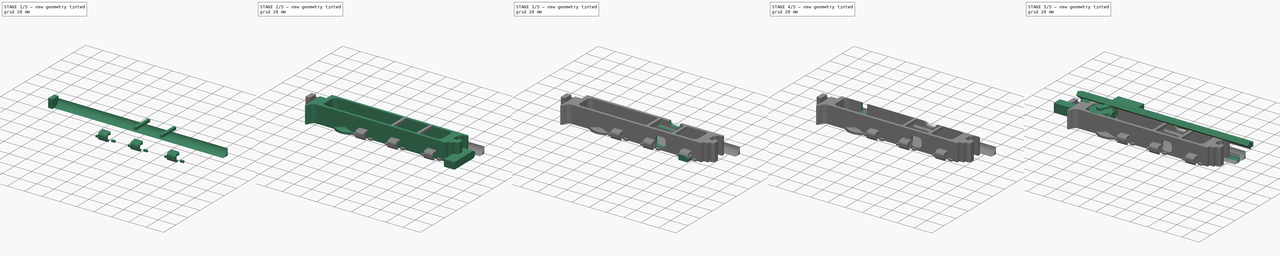
[diagram: build sequence overview — one tinted view per stage of 5, left to right]
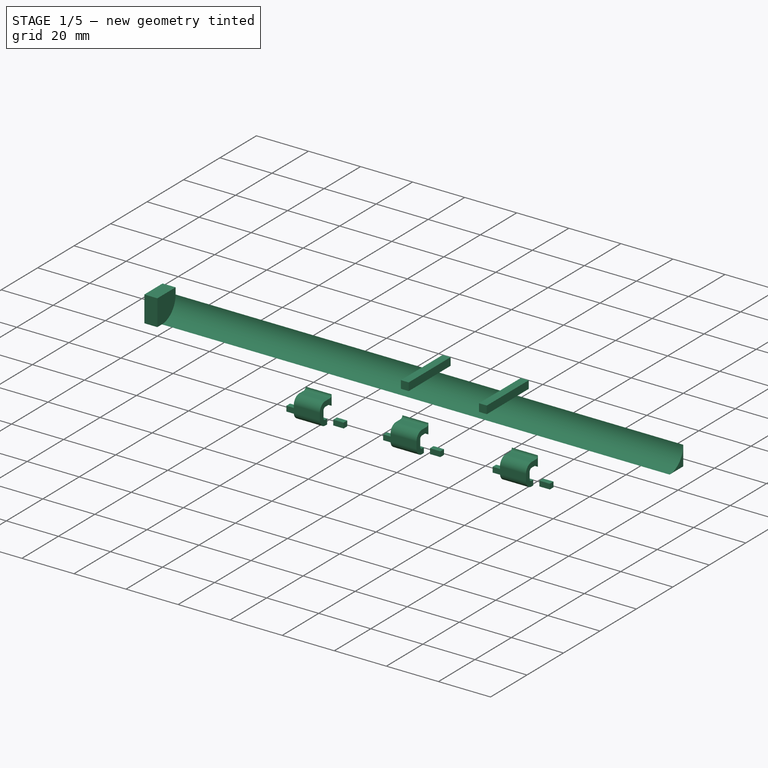
[diagram: stage 1 of 5 — iso view after this stage's code; geometry added in this stage tinted green]
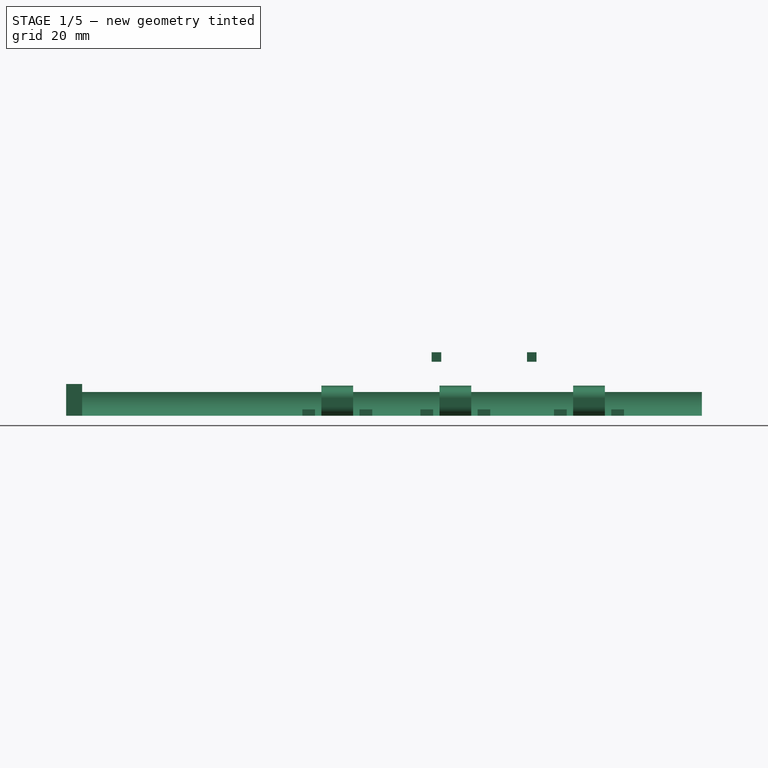
[diagram: stage 1 of 5 — front view after this stage's code; geometry added in this stage tinted green]
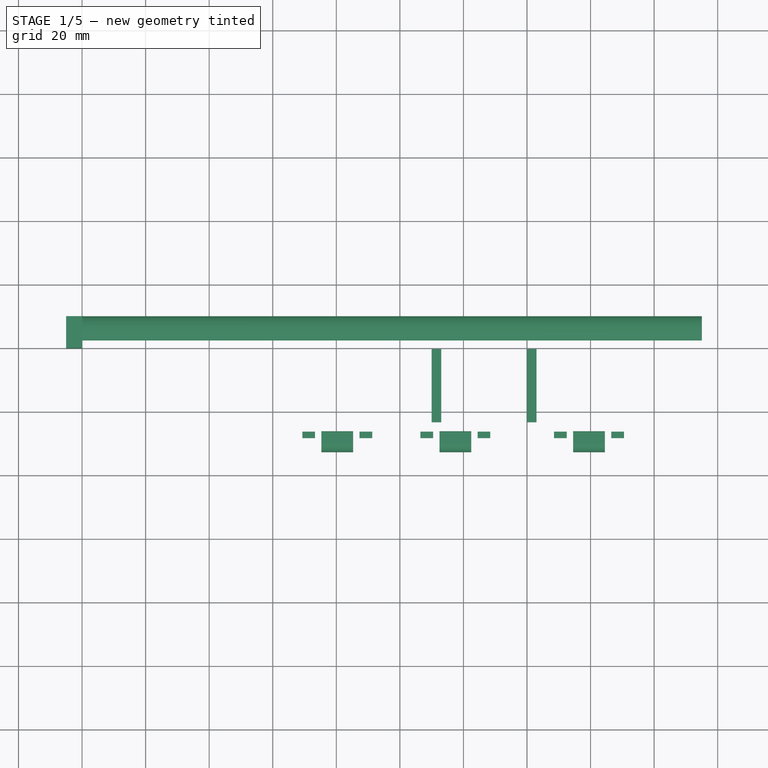
[diagram: stage 1 of 5 — top view after this stage's code; geometry added in this stage tinted green]
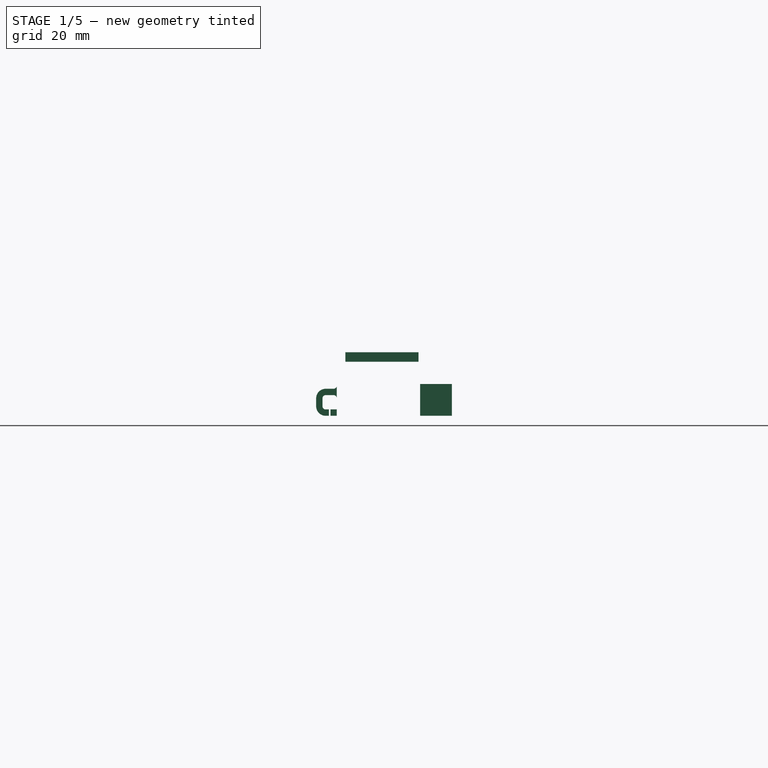
[diagram: stage 1 of 5 — right view after this stage's code; geometry added in this stage tinted green]
FCSTD DOCUMENT  (FreeCAD 0.19R0.19.2)
Label: v0_81
License: All rights reserved
LicenseURL: http://en.wikipedia.org/wiki/All_rights_reserved
objects: Part::Box×43, Part::Fillet×41, Part::MultiFuse×21, Part::Cut×15, Sketcher::SketchObject×13, Part::Extrusion×11, Part::Cylinder×6, App::MeasureDistance×5, Part::Revolution×1
note: 151 computed .brp shape members not serialized (recipe doc carries the construction recipe); baked Part::Feature solids carry a one-line shape summary decoded from their .brp

FEATURE [Sketcher::SketchObject] Sketch044
  FullyConstrained = true
  MapMode = 4
  Placement = pos=(0,0,0) rot=(0.57735,0.57735,0.57735;2.0944rad)
  sketch-geometry (14):
    g0: LineSegment StartX=6.08745 StartY=-4.11588 StartZ=0 EndX=6.08745 EndY=-2.11589 EndZ=0
    g1: LineSegment StartX=8.08745 StartY=1.38411 StartZ=0 EndX=8.08745 EndY=-1.11589 EndZ=0
    g2: ArcOfCircle CenterX=7.08745 CenterY=-1.11589 CenterZ=0 NormalX=0 NormalY=0 NormalZ=1 AngleXU=0 Radius=1 StartAngle=4.71239 EndAngle=6.28319
    g3: LineSegment StartX=6.08745 StartY=-2.11589 StartZ=0 EndX=7.08745 EndY=-2.11589 EndZ=0
    g4: LineSegment StartX=6.08745 StartY=-4.11588 StartZ=0 EndX=7.08745 EndY=-4.11588 EndZ=0
    g5: ArcOfCircle CenterX=7.08745 CenterY=-1.11589 CenterZ=0 NormalX=0 NormalY=0 NormalZ=1 AngleXU=0 Radius=3 StartAngle=4.71239 EndAngle=6.28319
    g6: ArcOfCircle CenterX=7.08745 CenterY=1.38411 CenterZ=0 NormalX=0 NormalY=0 NormalZ=1 AngleXU=0 Radius=1 StartAngle=5.35e-14 EndAngle=1.5708
    g7: LineSegment StartX=10.0875 StartY=-1.11588 StartZ=0 EndX=10.0875 EndY=1.38411 EndZ=0
    g8: ArcOfCircle CenterX=7.08745 CenterY=1.38411 CenterZ=0 NormalX=0 NormalY=0 NormalZ=1 AngleXU=0 Radius=3 StartAngle=3.57e-14 EndAngle=1.5708
    g9: ArcOfCircle CenterX=4.58745 CenterY=1.38412 CenterZ=0 NormalX=0 NormalY=0 NormalZ=1 AngleXU=0 Radius=1 StartAngle=1.57081 EndAngle=3.14159
    g10: LineSegment StartX=4.58744 StartY=2.38411 StartZ=0 EndX=7.08745 EndY=2.38411 EndZ=0
    g11: LineSegment StartX=4.58745 StartY=4.38411 StartZ=0 EndX=7.08745 EndY=4.38411 EndZ=0
    g12: ArcOfCircle CenterX=4.58745 CenterY=5.38411 CenterZ=0 NormalX=0 NormalY=0 NormalZ=1 AngleXU=0 Radius=1 StartAngle=3.14159 EndAngle=4.71239
    g13: LineSegment StartX=3.58745 StartY=5.38411 StartZ=0 EndX=3.58745 EndY=1.38411 EndZ=0
  constraints (33):
    c: Vertical(g0)
    c: Block(g0)
    c: Block(g1)
    c: Coincident(g2,g1)
    c: Coincident(g3,g0)
    c: Coincident(g3,g2)
    c: Horizontal(g3)
    c: Block(g2)
    c: Coincident(g4,g0)
    c: Horizontal(g4)
    c: Coincident(g5,g2)
    c: Block(g5)
    c: Block(g4)
    c: Coincident(g6,g1)
    c: Block(g6)
    c: Coincident(g7,g5)
    c: Vertical(g7)
    c: Coincident(g8,g6)
    c: Block(g8)
    c: Block(g7)
    c: Coincident(g10,g9)
    c: Coincident(g10,g6)
    c: Horizontal(g10)
    c: Block(g10)
    c: Block(g9)
    c: Coincident(g11,g8)
    c: Horizontal(g11)
    c: Block(g12)
    c: Block(g11)
    c: Coincident(g13,g12)
    c: Coincident(g13,g9)
    c: Vertical(g13)
    c: Tangent(g13,g9)
FEATURE [Sketcher::SketchObject] Sketch045
  FullyConstrained = true
  MapMode = 4
  Placement = pos=(0,0,0) rot=(0.57735,0.57735,0.57735;2.0944rad)
  sketch-geometry (14):
    g0: LineSegment StartX=6.08745 StartY=-4.11588 StartZ=0 EndX=6.08745 EndY=-2.11589 EndZ=0
    g1: LineSegment StartX=8.08745 StartY=1.38411 StartZ=0 EndX=8.08745 EndY=-1.11589 EndZ=0
    g2: ArcOfCircle CenterX=7.08745 CenterY=-1.11589 CenterZ=0 NormalX=0 NormalY=0 NormalZ=1 AngleXU=0 Radius=1 StartAngle=4.71239 EndAngle=6.28319
    g3: LineSegment StartX=6.08745 StartY=-2.11589 StartZ=0 EndX=7.08745 EndY=-2.11589 EndZ=0
    g4: LineSegment StartX=6.08745 StartY=-4.11588 StartZ=0 EndX=7.08745 EndY=-4.11588 EndZ=0
    g5: ArcOfCircle CenterX=7.08745 CenterY=-1.11589 CenterZ=0 NormalX=0 NormalY=0 NormalZ=1 AngleXU=0 Radius=3 StartAngle=4.71239 EndAngle=6.28319
    g6: ArcOfCircle CenterX=7.08745 CenterY=1.38411 CenterZ=0 NormalX=0 NormalY=0 NormalZ=1 AngleXU=0 Radius=1 StartAngle=5.35e-14 EndAngle=1.5708
    g7: LineSegment StartX=10.0875 StartY=-1.11588 StartZ=0 EndX=10.0875 EndY=1.38411 EndZ=0
    g8: ArcOfCircle CenterX=7.08745 CenterY=1.38411 CenterZ=0 NormalX=0 NormalY=0 NormalZ=1 AngleXU=0 Radius=3 StartAngle=3.57e-14 EndAngle=1.5708
    g9: ArcOfCircle CenterX=4.58745 CenterY=1.38412 CenterZ=0 NormalX=0 NormalY=0 NormalZ=1 AngleXU=0 Radius=1 StartAngle=1.57081 EndAngle=3.14159
    g10: LineSegment StartX=4.58744 StartY=2.38411 StartZ=0 EndX=7.08745 EndY=2.38411 EndZ=0
    g11: LineSegment StartX=4.58745 StartY=4.38411 StartZ=0 EndX=7.08745 EndY=4.38411 EndZ=0
    g12: ArcOfCircle CenterX=4.58745 CenterY=5.38411 CenterZ=0 NormalX=0 NormalY=0 NormalZ=1 AngleXU=0 Radius=1 StartAngle=3.14159 EndAngle=4.71239
    g13: LineSegment StartX=3.58745 StartY=5.38411 StartZ=0 EndX=3.58745 EndY=1.38411 EndZ=0
  constraints (33):
    c: Vertical(g0)
    c: Block(g0)
    c: Block(g1)
    c: Coincident(g2,g1)
    c: Coincident(g3,g0)
    c: Coincident(g3,g2)
    c: Horizontal(g3)
    c: Block(g2)
    c: Coincident(g4,g0)
    c: Horizontal(g4)
    c: Coincident(g5,g2)
    c: Block(g5)
    c: Block(g4)
    c: Coincident(g6,g1)
    c: Block(g6)
    c: Coincident(g7,g5)
    c: Vertical(g7)
    c: Coincident(g8,g6)
    c: Block(g8)
    c: Block(g7)
    c: Coincident(g10,g9)
    c: Coincident(g10,g6)
    c: Horizontal(g10)
    c: Block(g10)
    c: Block(g9)
    c: Coincident(g11,g8)
    c: Horizontal(g11)
    c: Block(g12)
    c: Block(g11)
    c: Coincident(g13,g12)
    c: Coincident(g13,g9)
    c: Vertical(g13)
    c: Tangent(g13,g9)
FEATURE [Part::Extrusion] Extrude040
  Base = -> Sketch045
  Dir = (1,0,0)
  DirMode = 2
  FaceMakerClass = Part::FaceMakerBullseye
  LengthFwd = 10
  LengthRev = 0
  Placement = pos=(-71.7,-22.61,4.115) rot=(0,0,1;3.14159rad)
  Solid = true
  Symmetric = false
FEATURE [Part::Box] Box017  label="Cube017"
  AttacherType = Attacher::AttachEngine3D
  Height = 2
  Length = 2
  Placement = pos=(-85.7,-21.3,0) rot=(0,0,1;0rad)
  Width = 2
FEATURE [Part::Box] Box018  label="Cube018"
  AttacherType = Attacher::AttachEngine3D
  Height = 2
  Length = 2
  Placement = pos=(-87.7,-21.3,0) rot=(0,0,1;0rad)
  Width = 2
FEATURE [Part::MultiFuse] Fusion
  Placement = pos=(0,-6.9,0) rot=(0,0,1;0rad)
  Shapes = -> [Box017,Box018]
FEATURE [Sketcher::SketchObject] Sketch046
  FullyConstrained = true
  MapMode = 4
  Placement = pos=(0,0,0) rot=(0.57735,0.57735,0.57735;2.0944rad)
  sketch-geometry (14):
    g0: LineSegment StartX=6.08745 StartY=-4.11588 StartZ=0 EndX=6.08745 EndY=-2.11589 EndZ=0
    g1: LineSegment StartX=8.08745 StartY=1.38411 StartZ=0 EndX=8.08745 EndY=-1.11589 EndZ=0
    g2: ArcOfCircle CenterX=7.08745 CenterY=-1.11589 CenterZ=0 NormalX=0 NormalY=0 NormalZ=1 AngleXU=0 Radius=1 StartAngle=4.71239 EndAngle=6.28319
    g3: LineSegment StartX=6.08745 StartY=-2.11589 StartZ=0 EndX=7.08745 EndY=-2.11589 EndZ=0
    g4: LineSegment StartX=6.08745 StartY=-4.11588 StartZ=0 EndX=7.08745 EndY=-4.11588 EndZ=0
    g5: ArcOfCircle CenterX=7.08745 CenterY=-1.11589 CenterZ=0 NormalX=0 NormalY=0 NormalZ=1 AngleXU=0 Radius=3 StartAngle=4.71239 EndAngle=6.28319
    g6: ArcOfCircle CenterX=7.08745 CenterY=1.38411 CenterZ=0 NormalX=0 NormalY=0 NormalZ=1 AngleXU=0 Radius=1 StartAngle=5.35e-14 EndAngle=1.5708
    g7: LineSegment StartX=10.0875 StartY=-1.11588 StartZ=0 EndX=10.0875 EndY=1.38411 EndZ=0
    g8: ArcOfCircle CenterX=7.08745 CenterY=1.38411 CenterZ=0 NormalX=0 NormalY=0 NormalZ=1 AngleXU=0 Radius=3 StartAngle=3.57e-14 EndAngle=1.5708
    g9: ArcOfCircle CenterX=4.58745 CenterY=1.38412 CenterZ=0 NormalX=0 NormalY=0 NormalZ=1 AngleXU=0 Radius=1 StartAngle=1.57081 EndAngle=3.14159
    g10: LineSegment StartX=4.58744 StartY=2.38411 StartZ=0 EndX=7.08745 EndY=2.38411 EndZ=0
    g11: LineSegment StartX=4.58745 StartY=4.38411 StartZ=0 EndX=7.08745 EndY=4.38411 EndZ=0
    g12: ArcOfCircle CenterX=4.58745 CenterY=5.38411 CenterZ=0 NormalX=0 NormalY=0 NormalZ=1 AngleXU=0 Radius=1 StartAngle=3.14159 EndAngle=4.71239
    g13: LineSegment StartX=3.58745 StartY=5.38411 StartZ=0 EndX=3.58745 EndY=1.38411 EndZ=0
  constraints (33):
    c: Vertical(g0)
    c: Block(g0)
    c: Block(g1)
    c: Coincident(g2,g1)
    c: Coincident(g3,g0)
    c: Coincident(g3,g2)
    c: Horizontal(g3)
    c: Block(g2)
    c: Coincident(g4,g0)
    c: Horizontal(g4)
    c: Coincident(g5,g2)
    c: Block(g5)
    c: Block(g4)
    c: Coincident(g6,g1)
    c: Block(g6)
    c: Coincident(g7,g5)
    c: Vertical(g7)
    c: Coincident(g8,g6)
    c: Block(g8)
    c: Block(g7)
    c: Coincident(g10,g9)
    c: Coincident(g10,g6)
    c: Horizontal(g10)
    c: Block(g10)
    c: Block(g9)
    c: Coincident(g11,g8)
    c: Horizontal(g11)
    c: Block(g12)
    c: Block(g11)
    c: Coincident(g13,g12)
    c: Coincident(g13,g9)
    c: Vertical(g13)
    c: Tangent(g13,g9)
FEATURE [Part::Extrusion] Extrude041
  Base = -> Sketch046
  Dir = (1,0,0)
  DirMode = 2
  FaceMakerClass = Part::FaceMakerBullseye
  LengthFwd = 10
  LengthRev = 0
  Placement = pos=(7.5,-22.61,4.115) rot=(0,0,1;3.14159rad)
  Solid = true
  Symmetric = false
FEATURE [Part::Box] Box042  label="Cube042"
  AttacherType = Attacher::AttachEngine3D
  Height = 2
  Length = 2
  Placement = pos=(-87.7,-21.3,0) rot=(0,0,1;0rad)
  Width = 2
FEATURE [Part::Box] Box043  label="Cube043"
  AttacherType = Attacher::AttachEngine3D
  Height = 2
  Length = 2
  Placement = pos=(-85.7,-21.3,0) rot=(0,0,1;0rad)
  Width = 2
FEATURE [Part::MultiFuse] Fusion019
  Placement = pos=(37.15,-6.9,0) rot=(0,0,1;0rad)
  Shapes = -> [Box043,Box042]
FEATURE [Part::Box] Box082  label="Cube082"
  AttacherType = Attacher::AttachEngine3D
  Height = 3
  Length = 3
  Placement = pos=(-20,-23.5,17) rot=(0,0,1;0rad)
  Width = 23
FEATURE [Part::Box] Box083  label="Cube083"
  AttacherType = Attacher::AttachEngine3D
  Height = 3
  Length = 3
  Placement = pos=(-50,-23.5,17) rot=(0,0,1;0rad)
  Width = 23
FEATURE [App::MeasureDistance] Distance003  label="Distance: 69.20 mm"
  Distance = 69.2
  P1 = (-2.5,-29.6975,8.49911)
  P2 = (-71.7,-29.6975,8.49911)
FEATURE [App::MeasureDistance] Distance004  label="Distance: 10.00 mm"
  Distance = 10
  P1 = (-56.7,-29.6975,8.49911)
  P2 = (-46.7,-29.6975,8.49911)
FEATURE [Sketcher::SketchObject] Sketch051
  FullyConstrained = true
  MapMode = 4
  Placement = pos=(0,0,0) rot=(0.57735,0.57735,0.57735;2.0944rad)
  sketch-geometry (14):
    g0: LineSegment StartX=6.08745 StartY=-4.11588 StartZ=0 EndX=6.08745 EndY=-2.11589 EndZ=0
    g1: LineSegment StartX=8.08745 StartY=1.38411 StartZ=0 EndX=8.08745 EndY=-1.11589 EndZ=0
    g2: ArcOfCircle CenterX=7.08745 CenterY=-1.11589 CenterZ=0 NormalX=0 NormalY=0 NormalZ=1 AngleXU=0 Radius=1 StartAngle=4.71239 EndAngle=6.28319
    g3: LineSegment StartX=6.08745 StartY=-2.11589 StartZ=0 EndX=7.08745 EndY=-2.11589 EndZ=0
    g4: LineSegment StartX=6.08745 StartY=-4.11588 StartZ=0 EndX=7.08745 EndY=-4.11588 EndZ=0
    g5: ArcOfCircle CenterX=7.08745 CenterY=-1.11589 CenterZ=0 NormalX=0 NormalY=0 NormalZ=1 AngleXU=0 Radius=3 StartAngle=4.71239 EndAngle=6.28319
    g6: ArcOfCircle CenterX=7.08745 CenterY=1.38411 CenterZ=0 NormalX=0 NormalY=0 NormalZ=1 AngleXU=0 Radius=1 StartAngle=5.35e-14 EndAngle=1.5708
    g7: LineSegment StartX=10.0875 StartY=-1.11588 StartZ=0 EndX=10.0875 EndY=1.38411 EndZ=0
    g8: ArcOfCircle CenterX=7.08745 CenterY=1.38411 CenterZ=0 NormalX=0 NormalY=0 NormalZ=1 AngleXU=0 Radius=3 StartAngle=3.57e-14 EndAngle=1.5708
    g9: ArcOfCircle CenterX=4.58745 CenterY=1.38412 CenterZ=0 NormalX=0 NormalY=0 NormalZ=1 AngleXU=0 Radius=1 StartAngle=1.57081 EndAngle=3.14159
    g10: LineSegment StartX=4.58744 StartY=2.38411 StartZ=0 EndX=7.08745 EndY=2.38411 EndZ=0
    g11: LineSegment StartX=4.58745 StartY=4.38411 StartZ=0 EndX=7.08745 EndY=4.38411 EndZ=0
    g12: ArcOfCircle CenterX=4.58745 CenterY=5.38411 CenterZ=0 NormalX=0 NormalY=0 NormalZ=1 AngleXU=0 Radius=1 StartAngle=3.14159 EndAngle=4.71239
    g13: LineSegment StartX=3.58745 StartY=5.38411 StartZ=0 EndX=3.58745 EndY=1.38411 EndZ=0
  constraints (33):
    c: Vertical(g0)
    c: Block(g0)
    c: Block(g1)
    c: Coincident(g2,g1)
    c: Coincident(g3,g0)
    c: Coincident(g3,g2)
    c: Horizontal(g3)
    c: Block(g2)
    c: Coincident(g4,g0)
    c: Horizontal(g4)
    c: Coincident(g5,g2)
    c: Block(g5)
    c: Block(g4)
    c: Coincident(g6,g1)
    c: Block(g6)
    c: Coincident(g7,g5)
    c: Vertical(g7)
    c: Coincident(g8,g6)
    c: Block(g8)
    c: Block(g7)
    c: Coincident(g10,g9)
    c: Coincident(g10,g6)
    c: Horizontal(g10)
    c: Block(g10)
    c: Block(g9)
    c: Coincident(g11,g8)
    c: Horizontal(g11)
    c: Block(g12)
    c: Block(g11)
    c: Coincident(g13,g12)
    c: Coincident(g13,g9)
    c: Vertical(g13)
    c: Tangent(g13,g9)
FEATURE [Part::Extrusion] Extrude049
  Base = -> Sketch051
  Dir = (1,0,0)
  DirMode = 2
  FaceMakerClass = Part::FaceMakerBullseye
  LengthFwd = 10
  LengthRev = 0
  Placement = pos=(-34.55,-22.61,4.115) rot=(0,0,1;3.14159rad)
  Solid = true
  Symmetric = false
FEATURE [Part::Box] Box089  label="Cube089"
  AttacherType = Attacher::AttachEngine3D
  Height = 2
  Length = 2
  Placement = pos=(-87.7,-21.3,0) rot=(0,0,1;0rad)
  Width = 2
FEATURE [Part::Box] Box090  label="Cube090"
  AttacherType = Attacher::AttachEngine3D
  Height = 2
  Length = 2
  Placement = pos=(-85.7,-21.3,0) rot=(0,0,1;0rad)
  Width = 2
FEATURE [Part::MultiFuse] Fusion053
  Placement = pos=(55.15,-6.9,0) rot=(0,0,1;0rad)
  Shapes = -> [Box090,Box089]
FEATURE [Part::Box] Box091  label="Cube091"
  AttacherType = Attacher::AttachEngine3D
  Height = 2
  Length = 2
  Placement = pos=(-87.7,-21.3,0) rot=(0,0,1;0rad)
  Width = 2
FEATURE [Part::Box] Box092  label="Cube092"
  AttacherType = Attacher::AttachEngine3D
  Height = 2
  Length = 2
  Placement = pos=(-85.7,-21.3,0) rot=(0,0,1;0rad)
  Width = 2
FEATURE [Part::MultiFuse] Fusion054
  Placement = pos=(79.2,-6.9,0) rot=(0,0,1;0rad)
  Shapes = -> [Box092,Box091]
FEATURE [Part::Box] Box093  label="Cube093"
  AttacherType = Attacher::AttachEngine3D
  Height = 2
  Length = 2
  Placement = pos=(-87.7,-21.3,0) rot=(0,0,1;0rad)
  Width = 2
FEATURE [Part::Box] Box094  label="Cube094"
  AttacherType = Attacher::AttachEngine3D
  Height = 2
  Length = 2
  Placement = pos=(-85.7,-21.3,0) rot=(0,0,1;0rad)
  Width = 2
FEATURE [Part::MultiFuse] Fusion055
  Placement = pos=(97.2,-6.9,0) rot=(0,0,1;0rad)
  Shapes = -> [Box094,Box093]
FEATURE [Part::Box] Box095  label="Cube095"
  AttacherType = Attacher::AttachEngine3D
  Height = 2
  Length = 2
  Placement = pos=(-87.7,-21.3,0) rot=(0,0,1;0rad)
  Width = 2
FEATURE [Part::Box] Box096  label="Cube096"
  AttacherType = Attacher::AttachEngine3D
  Height = 2
  Length = 2
  Placement = pos=(-85.7,-21.3,0) rot=(0,0,1;0rad)
  Width = 2
FEATURE [Part::MultiFuse] Fusion056
  Placement = pos=(18,-6.9,0) rot=(0,0,1;0rad)
  Shapes = -> [Box096,Box095]
FEATURE [Part::MultiFuse] Fusion057
  Placement = pos=(-3,0,0) rot=(0,0,1;0rad)
  Shapes = -> [Fusion056,Fusion055,Extrude041,Fusion054,Fusion053,Extrude049,Fusion019,Extrude040,Fusion]
FEATURE [Part::Box] Box097  label="Cube097"
  AttacherType = Attacher::AttachEngine3D
  Height = 10
  Length = 200
  Placement = pos=(-160,0,0) rot=(0,0,1;0rad)
  Width = 10
FEATURE [Part::Fillet] Fillet071
  Base = -> Box097
  Edges = 1 edges r=7.5: [Edge11]
FEATURE [Part::Box] Box098  label="Cube098"
  AttacherType = Attacher::AttachEngine3D
  Height = 10
  Length = 200
  Placement = pos=(-165,0,0) rot=(0,0,1;0rad)
  Width = 10
FEATURE [Part::Cut] Cut033
  Base = -> Box098
  Tool = -> Fillet071
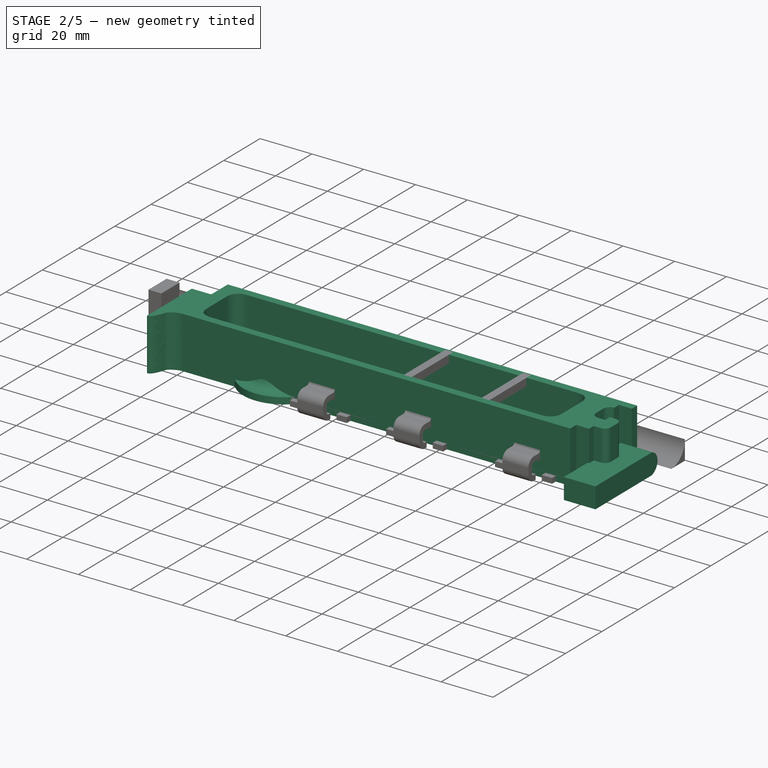
[diagram: stage 2 of 5 — iso view after this stage's code; geometry added in this stage tinted green]
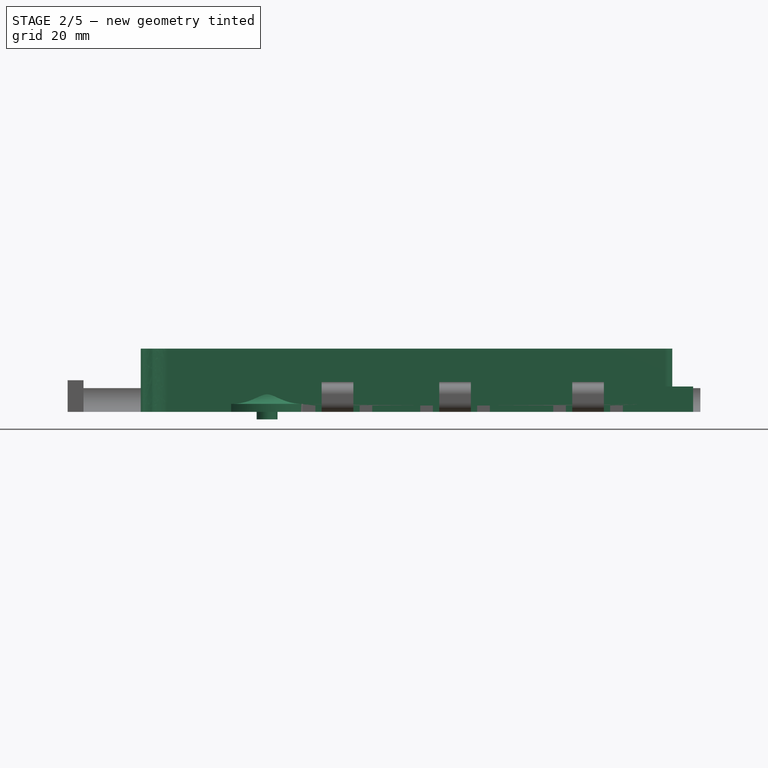
[diagram: stage 2 of 5 — front view after this stage's code; geometry added in this stage tinted green]
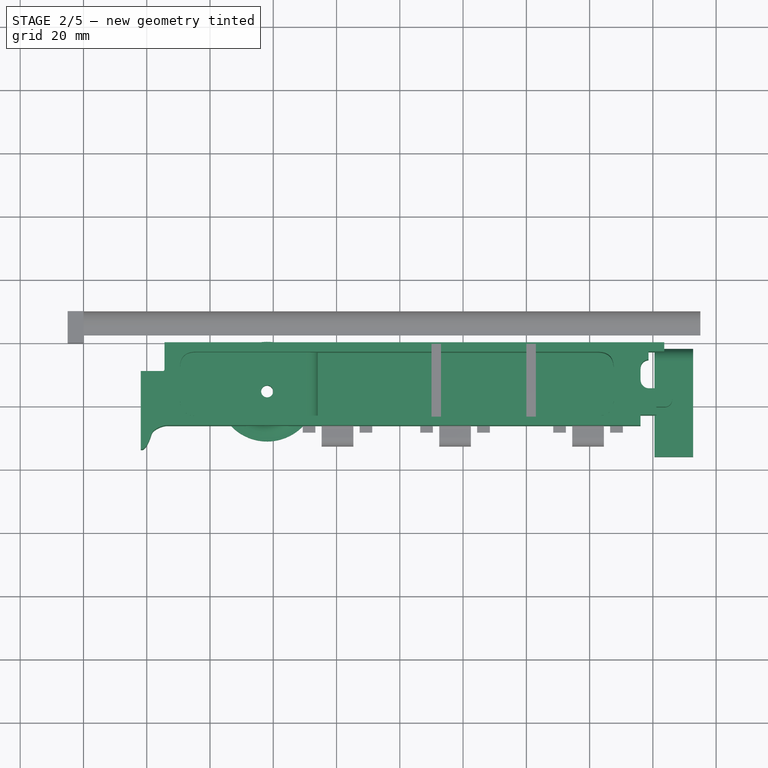
[diagram: stage 2 of 5 — top view after this stage's code; geometry added in this stage tinted green]
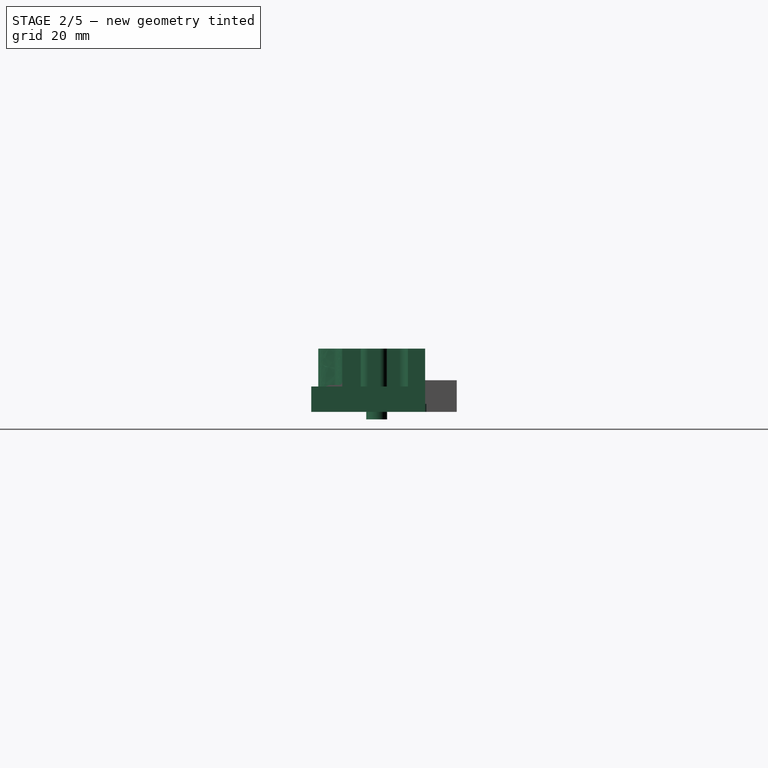
[diagram: stage 2 of 5 — right view after this stage's code; geometry added in this stage tinted green]
FEATURE [Sketcher::SketchObject] Sketch001
  FullyConstrained = true
  sketch-geometry (47):
    g0: Circle CenterX=-129.5 CenterY=-8 CenterZ=0 NormalX=0 NormalY=0 NormalZ=1 AngleXU=0 Radius=1
    g1: Circle CenterX=-129.5 CenterY=-3 CenterZ=0 NormalX=0 NormalY=0 NormalZ=1 AngleXU=0 Radius=1
    g2: Circle CenterX=-124.5 CenterY=-3 CenterZ=0 NormalX=0 NormalY=0 NormalZ=1 AngleXU=0 Radius=1
    g3: BSplineCurve PolesCount=3 KnotsCount=2 Degree=2 IsPeriodic=0
    g4: GeomPoint X=-129.5 Y=-8 Z=0
    g5: GeomPoint X=-124.5 Y=-3 Z=0
    g6: LineSegment StartX=18.6 StartY=-2.9 StartZ=0 EndX=23.6 EndY=-2.9 EndZ=0
    g7: ArcOfCircle CenterX=23.8 CenterY=-14.35 CenterZ=0 NormalX=0 NormalY=0 NormalZ=1 AngleXU=0 Radius=2.3 StartAngle=8e-16 EndAngle=1.5708
    g8: ArcOfCircle CenterX=23.8 CenterY=-18.1 CenterZ=0 NormalX=0 NormalY=0 NormalZ=1 AngleXU=0 Radius=2.3 StartAngle=4.71239 EndAngle=6.28319
    g9: LineSegment StartX=23.8 StartY=-20.4 StartZ=0 EndX=21.1 EndY=-20.4 EndZ=0
    g10: LineSegment StartX=21.1 StartY=-22.9 StartZ=0 EndX=21.1 EndY=-20.4 EndZ=0
    g11: LineSegment StartX=26.1 StartY=-14.35 StartZ=0 EndX=26.1 EndY=-18.1 EndZ=0
    g12: LineSegment StartX=18.6 StartY=-5.40742 StartZ=0 EndX=18.6 EndY=-2.9 EndZ=0
    g13: ArcOfCircle CenterX=18.8 CenterY=-8.1 CenterZ=0 NormalX=0 NormalY=0 NormalZ=1 AngleXU=0 Radius=2.7 StartAngle=1.64494 EndAngle=3.14159
    g14: ArcOfCircle CenterX=18.8 CenterY=-11.85 CenterZ=0 NormalX=0 NormalY=0 NormalZ=1 AngleXU=0 Radius=2.7 StartAngle=3.14159 EndAngle=4.71239
    g15: LineSegment StartX=16.1 StartY=-8.1 StartZ=0 EndX=16.1 EndY=-11.85 EndZ=0
    g16: LineSegment StartX=18.8 StartY=-14.55 StartZ=0 EndX=21.5 EndY=-14.55 EndZ=0
    g17: LineSegment StartX=21.5 StartY=-12.05 StartZ=0 EndX=21.5 EndY=-14.55 EndZ=0
    g18: LineSegment StartX=21.5 StartY=-12.05 StartZ=0 EndX=23.8 EndY=-12.05 EndZ=0
    g19: LineSegment StartX=16.1 StartY=-22.9 StartZ=0 EndX=21.1 EndY=-22.9 EndZ=0
    g20: LineSegment StartX=23.6 StartY=-2.9 StartZ=0 EndX=23.6 EndY=0 EndZ=0
    g21: LineSegment StartX=16.1 StartY=-22.9 StartZ=0 EndX=16.1 EndY=-26.2 EndZ=0
    g22: BSplineCurve PolesCount=3 KnotsCount=2 Degree=2 IsPeriodic=0
    g23: LineSegment StartX=2.6 StartY=-3 StartZ=0 EndX=-124.5 EndY=-3 EndZ=0
    g24: ArcOfCircle CenterX=-134.9 CenterY=-8.6 CenterZ=0 NormalX=0 NormalY=0 NormalZ=1 AngleXU=0 Radius=0.5 StartAngle=4.71238 EndAngle=6.28319
    g25: LineSegment StartX=-141.9 StartY=-9.1 StartZ=0 EndX=-134.9 EndY=-9.1 EndZ=0
    g26: LineSegment StartX=-141.9 StartY=-33.8 StartZ=0 EndX=-141.5 EndY=-33.8 EndZ=0
    g27: LineSegment StartX=-141.9 StartY=-9.1 StartZ=0 EndX=-141.9 EndY=-33.8 EndZ=0
    g28: LineSegment StartX=-134.4 StartY=-8.6 StartZ=0 EndX=-134.4 EndY=0 EndZ=0
    g29: LineSegment StartX=-134.4 StartY=0 StartZ=0 EndX=23.6 EndY=0 EndZ=0
    g30: LineSegment StartX=-133.5 StartY=-26.2 StartZ=0 EndX=16.1 EndY=-26.2 EndZ=0
    g31-g36: Circle x6 (B-spline internal-alignment scaffolding for g37; pole/knot coordinates omitted)
    g37: BSplineCurve PolesCount=6 KnotsCount=4 Degree=3 IsPeriodic=0
    g38-g41: GeomPoint x4 (B-spline internal-alignment scaffolding for g37; pole/knot coordinates omitted)
    g42: BSplineCurve PolesCount=3 KnotsCount=2 Degree=2 IsPeriodic=0
    g43: LineSegment StartX=-129.5 StartY=-8 StartZ=0 EndX=-129.5 EndY=-18.2 EndZ=0
    g44: BSplineCurve PolesCount=3 KnotsCount=2 Degree=2 IsPeriodic=0
    g45: LineSegment StartX=7.6 StartY=-8 StartZ=0 EndX=7.6 EndY=-18.2 EndZ=0
    g46: LineSegment StartX=2.6 StartY=-23.2 StartZ=0 EndX=-124.5 EndY=-23.2 EndZ=0
  constraints (87):
    c: Weight(g0) = 1
    c: Equal(g0,g1)
    c: Equal(g0,g2)
    c: InternalAlignment(g0,g3)
    c: InternalAlignment(g1,g3)
    c: InternalAlignment(g2,g3)
    c: InternalAlignment(g4,g3)
    c: InternalAlignment(g5,g3)
    c: Block(g3)
    c: Block(g8)
    c: Block(g7)
    c: Coincident(g9,g8)
    c: Horizontal(g9)
    c: Vertical(g10)
    c: Coincident(g10,g9)
    c: Coincident(g11,g7)
    c: Coincident(g11,g8)
    c: Vertical(g11)
    c: Vertical(g12)
    c: Block(g12)
    c: Coincident(g6,g12)
    c: Horizontal(g6)
    c: Block(g6)
    c: Coincident(g13,g12)
    c: Block(g14)
    c: Vertical(g15)
    c: Block(g15)
    c: Coincident(g16,g14)
    c: Horizontal(g16)
    c: Vertical(g17)
    c: Coincident(g17,g16)
    c: Block(g17)
    c: Coincident(g18,g7)
    c: Horizontal(g18)
    c: Block(g18)
    c: Coincident(g19,g10)
    c: Horizontal(g19)
    c: Block(g19)
    c: Block(g13)
    c: Coincident(g20,g6)
    c: Vertical(g20)
    c: Vertical(g21)
    c: Block(g21)
    c: Block(g22)
    c: Coincident(g23,g22)
    c: Coincident(g23,g3)
    c: Horizontal(g23)
    c: Block(g24)
    c: Coincident(g25,g24)
    c: Horizontal(g25)
    c: Horizontal(g26)
    c: Block(g26)
    c: Coincident(g27,g25)
    c: Coincident(g27,g26)
    c: Vertical(g27)
    c: Coincident(g28,g24)
    c: Vertical(g28)
    c: Coincident(g29,g28)
    c: Coincident(g29,g20)
    c: Horizontal(g29)
    c: Block(g29)
    c: Block(g25)
    c: Block(g28)
    c: Block(g27)
    c: Coincident(g30,g21)
    c: Horizontal(g30)
    c: Block(g30)
    c: Coincident(g37,g26)
    c: Weight(g31) = 1
    c: Equal(g31, g32-g36) x5
    c: Coincident(g37,g30)
    c: InternalAlignment(g31-g36 -> g37) x6
    c: InternalAlignment(g38-g41 -> g37) x4
    c: Block(g37)
    c: Block(g42)
    c: Coincident(g43,g3)
    c: Coincident(g43,g42)
    c: Vertical(g43)
    c: Distance(g43) = 10.2
    c: Block(g44)
    c: Coincident(g45,g22)
    c: Coincident(g45,g44)
    c: Vertical(g45)
    c: Distance(g45) = 10.2
    c: Coincident(g46,g44)
    c: Coincident(g46,g42)
    c: Horizontal(g46)
FEATURE [Part::Extrusion] Extrude001
  Base = -> Sketch001
  Dir = (0,0,1)
  DirMode = 2
  FaceMakerClass = Part::FaceMakerBullseye
  LengthFwd = 20
  LengthRev = 0
  Solid = true
  Symmetric = false
FEATURE [Sketcher::SketchObject] Sketch004
  FullyConstrained = true
  Placement = pos=(0,0,0) rot=(1,0,0;1.5708rad)
  sketch-geometry (12):
    g0: LineSegment StartX=15.75 StartY=2.5 StartZ=0 EndX=15.75 EndY=0 EndZ=0
    g1: Circle CenterX=15.75 CenterY=2.5 CenterZ=0 NormalX=0 NormalY=0 NormalZ=1 AngleXU=0 Radius=1
    g2: Circle CenterX=10.55 CenterY=2.5 CenterZ=0 NormalX=0 NormalY=0 NormalZ=1 AngleXU=0 Radius=1
    g3: Circle CenterX=10.55 CenterY=8 CenterZ=0 NormalX=0 NormalY=0 NormalZ=1 AngleXU=0 Radius=1
    g4: BSplineCurve PolesCount=3 KnotsCount=2 Degree=2 IsPeriodic=0
    g5: GeomPoint X=15.75 Y=2.5 Z=0
    g6: GeomPoint X=10.55 Y=8 Z=0
    g7: LineSegment StartX=1.9 StartY=8 StartZ=0 EndX=10.55 EndY=8 EndZ=0
    g8: LineSegment StartX=1.9 StartY=-2.4 StartZ=0 EndX=1.9 EndY=8 EndZ=0
    g9: LineSegment StartX=3.30092 StartY=-2.4 StartZ=0 EndX=3.30092 EndY=0 EndZ=0
    g10: LineSegment StartX=15.75 StartY=0 StartZ=0 EndX=3.30092 EndY=0 EndZ=0
    g11: LineSegment StartX=3.30092 StartY=-2.4 StartZ=0 EndX=1.9 EndY=-2.4 EndZ=0
  constraints (26):
    c: Vertical(g0)
    c: Distance(g0) = 2.5
    c: Coincident(g4,g0)
    c: Weight(g1) = 1
    c: Equal(g1,g2)
    c: Equal(g1,g3)
    c: InternalAlignment(g1,g4)
    c: InternalAlignment(g2,g4)
    c: InternalAlignment(g3,g4)
    c: InternalAlignment(g5,g4)
    c: InternalAlignment(g6,g4)
    c: Block(g4)
    c: Coincident(g7,g4)
    c: Horizontal(g7)
    c: Vertical(g8)
    c: Coincident(g8,g7)
    c: Block(g8)
    c: Vertical(g9)
    c: Coincident(g10,g0)
    c: PointOnObject(g10,g-1)
    c: Horizontal(g10)
    c: Coincident(g10,g9)
    c: Block(g9)
    c: Coincident(g11,g9)
    c: Coincident(g11,g8)
    c: Horizontal(g11)
FEATURE [Part::Revolution] Revolve  label="mainScrewStandRevolve"
  Angle = 360
  Axis = (0,0,1)
  Base = (0,0,0)
  FaceMakerClass = Part::FaceMakerBullseye
  Placement = pos=(-101.95,-15.3,0) rot=(0,0,1;0rad)
  Solid = true
  Source = -> Sketch004
  Symmetric = false
FEATURE [Sketcher::SketchObject] Sketch
  FullyConstrained = true
  sketch-geometry (35):
    g0: Circle CenterX=-101.95 CenterY=-14.3 CenterZ=0 NormalX=0 NormalY=0 NormalZ=1 AngleXU=0 Radius=3.25
    g1: LineSegment StartX=16.1 StartY=-26.2 StartZ=0 EndX=16.1 EndY=-22.9 EndZ=0
    g2: ArcOfCircle CenterX=23.8 CenterY=-14.35 CenterZ=0 NormalX=0 NormalY=0 NormalZ=1 AngleXU=0 Radius=2.3 StartAngle=8e-16 EndAngle=1.5708
    g3: LineSegment StartX=18.6 StartY=-5.40742 StartZ=0 EndX=18.6 EndY=-2.9 EndZ=0
    g4: LineSegment StartX=18.6 StartY=-2.9 StartZ=0 EndX=23.6 EndY=-2.9 EndZ=0
    g5: LineSegment StartX=23.6 StartY=-2.9 StartZ=0 EndX=23.6 EndY=2.58e-14 EndZ=0
    g6: LineSegment StartX=18.8 StartY=-14.55 StartZ=0 EndX=21.5 EndY=-14.55 EndZ=0
    g7: LineSegment StartX=21.5 StartY=-12.05 StartZ=0 EndX=21.5 EndY=-14.55 EndZ=0
    g8: LineSegment StartX=21.5 StartY=-12.05 StartZ=0 EndX=23.8 EndY=-12.05 EndZ=0
    g9: ArcOfCircle CenterX=23.8 CenterY=-18.1 CenterZ=0 NormalX=0 NormalY=0 NormalZ=1 AngleXU=0 Radius=2.3 StartAngle=4.71239 EndAngle=6.28319
    g10: LineSegment StartX=23.8 StartY=-20.4 StartZ=0 EndX=21.1 EndY=-20.4 EndZ=0
    g11: LineSegment StartX=26.1 StartY=-14.35 StartZ=0 EndX=26.1 EndY=-18.1 EndZ=0
    g12: ArcOfCircle CenterX=18.8 CenterY=-8.1 CenterZ=0 NormalX=0 NormalY=0 NormalZ=1 AngleXU=0 Radius=2.7 StartAngle=1.64494 EndAngle=3.14159
    g13: ArcOfCircle CenterX=18.8 CenterY=-11.85 CenterZ=0 NormalX=0 NormalY=0 NormalZ=1 AngleXU=0 Radius=2.7 StartAngle=3.14159 EndAngle=4.71239
    g14: LineSegment StartX=16.1 StartY=-8.1 StartZ=0 EndX=16.1 EndY=-11.85 EndZ=0
    g15: LineSegment StartX=21.1 StartY=-22.9 StartZ=0 EndX=21.1 EndY=-20.4 EndZ=0
    g16: LineSegment StartX=16.1 StartY=-22.9 StartZ=0 EndX=21.1 EndY=-22.9 EndZ=0
    g17: LineSegment StartX=23.6 StartY=2.58e-14 StartZ=0 EndX=-134.4 EndY=2.58e-14 EndZ=0
    g18: LineSegment StartX=-134.4 StartY=2.59e-14 StartZ=0 EndX=-134.4 EndY=-8.6 EndZ=0
    g19: ArcOfCircle CenterX=-134.9 CenterY=-8.6 CenterZ=0 NormalX=0 NormalY=0 NormalZ=1 AngleXU=0 Radius=0.5 StartAngle=4.71238 EndAngle=6.28319
    g20: LineSegment StartX=-134.9 StartY=-9.1 StartZ=0 EndX=-141.9 EndY=-9.1 EndZ=0
    g21: LineSegment StartX=-141.9 StartY=-9.1 StartZ=0 EndX=-141.9 EndY=-33.8 EndZ=0
    g22: LineSegment StartX=-141.9 StartY=-33.8 StartZ=0 EndX=-141.5 EndY=-33.8 EndZ=0
    g23: LineSegment StartX=-133.5 StartY=-26.2 StartZ=0 EndX=16.1 EndY=-26.2 EndZ=0
    g24-g29: Circle x6 (B-spline internal-alignment scaffolding for g30; pole/knot coordinates omitted)
    g30: BSplineCurve PolesCount=6 KnotsCount=4 Degree=3 IsPeriodic=0
    g31-g34: GeomPoint x4 (B-spline internal-alignment scaffolding for g30; pole/knot coordinates omitted)
  constraints (61):
    c: Block(g0)
    c: Vertical(g1)
    c: Distance(g1) = 3.3
    c: Block(g9)
    c: Block(g2)
    c: Coincident(g10,g9)
    c: Horizontal(g10)
    c: Vertical(g15)
    c: Coincident(g15,g10)
    c: Coincident(g11,g2)
    c: Coincident(g11,g9)
    c: Vertical(g11)
    c: Vertical(g3)
    c: Block(g3)
    c: Coincident(g4,g3)
    c: Horizontal(g4)
    c: Vertical(g5)
    c: Block(g5)
    c: Block(g4)
    c: Coincident(g12,g3)
    c: Block(g13)
    c: Coincident(g14,g12)
    c: Vertical(g14)
    c: Block(g14)
    c: Coincident(g6,g13)
    c: Horizontal(g6)
    c: Vertical(g7)
    c: Coincident(g7,g6)
    c: Block(g7)
    c: Coincident(g8,g2)
    c: Horizontal(g8)
    c: Block(g8)
    c: Coincident(g16,g15)
    c: Horizontal(g16)
    c: Block(g16)
    c: Block(g12)
    c: Coincident(g16,g1)
    c: Coincident(g17,g5)
    c: Horizontal(g17)
    c: Vertical(g18)
    c: Horizontal(g20)
    c: Coincident(g19,g18)
    c: Coincident(g19,g20)
    c: Block(g19)
    c: Coincident(g21,g20)
    c: Vertical(g21)
    c: Block(g21)
    c: Coincident(g22,g21)
    c: Horizontal(g22)
    c: Block(g22)
    c: Block(g18)
    c: Coincident(g18,g17)
    c: Coincident(g23,g1)
    c: Horizontal(g23)
    c: Distance(g23) = 149.6
    c: Coincident(g30,g22)
    c: Weight(g24) = 1
    c: Equal(g24, g25-g29) x5
    c: InternalAlignment(g24-g29 -> g30) x6
    c: InternalAlignment(g31-g34 -> g30) x4
    c: Block(g30)
FEATURE [Part::Extrusion] Extrude
  Base = -> Sketch
  Dir = (0,0,1)
  DirMode = 2
  FaceMakerClass = Part::FaceMakerBullseye
  LengthFwd = 2.4
  LengthRev = 0
  Solid = true
  Symmetric = false
FEATURE [Part::Box] Box051  label="Cube051"
  AttacherType = Attacher::AttachEngine3D
  Height = 10
  Length = 198
  Placement = pos=(-30,0,0) rot=(0,0,1;0rad)
  Width = 10
FEATURE [Part::Box] Box052  label="Cube052"
  AttacherType = Attacher::AttachEngine3D
  Height = 5
  Length = 200
  Placement = pos=(-30,6.4,10) rot=(1,0,0;0rad)
  Width = 5
FEATURE [Part::Box] Box053  label="Cube053"
  AttacherType = Attacher::AttachEngine3D
  Height = 5
  Length = 200
  Placement = pos=(-30,6.4,10) rot=(1,0,0;0.872665rad)
  Width = 5
FEATURE [Part::Box] Box054  label="Cube054"
  AttacherType = Attacher::AttachEngine3D
  Height = 10
  Length = 200
  Placement = pos=(-30,0,0) rot=(0,0,1;0rad)
  Width = 10
FEATURE [Part::Fillet] Fillet021
  Base = -> Box054
  Edges = 1 edges r=3.6: [Edge12]
FEATURE [Part::Cut] Cut015
  Base = -> Box051
  Tool = -> Fillet021
FEATURE [Part::MultiFuse] Fusion033  label="removeFromMainFusion014"
  Placement = pos=(-120,-10,10) rot=(0,0,1;0rad)
  Shapes = -> [Box053,Box052,Cut015]
FEATURE [Part::Box] Box055  label="Cube055"
  AttacherType = Attacher::AttachEngine3D
  Height = 10
  Length = 190
  Placement = pos=(-30,0,0) rot=(0,0,1;0rad)
  Width = 10
FEATURE [Part::Box] Box056  label="Cube056"
  AttacherType = Attacher::AttachEngine3D
  Height = 10
  Length = 190
  Placement = pos=(-35,0,0) rot=(0,0,1;0rad)
  Width = 10
FEATURE [Part::Fillet] Fillet022
  Base = -> Box055
  Edges = 1 edges r=7.5: [Edge11]
FEATURE [Part::Cut] Cut014  label="filletMain001"
  Base = -> Box056
  Placement = pos=(-120,-10,0) rot=(0,0,1;0rad)
  Tool = -> Fillet022
FEATURE [Part::MultiFuse] Fusion032  label="removeFromMain001"
  Shapes = -> [Fusion033,Cut014]
FEATURE [Part::Cut] Cut017
  Base = -> Extrude
  Tool = -> Fusion032
FEATURE [Part::Extrusion] Extrude046
  Base = -> Sketch047
  Dir = (0,0,1)
  DirMode = 2
  FaceMakerClass = Part::FaceMakerBullseye
  LengthFwd = 8
  LengthRev = 0
  Solid = true
  Symmetric = false
FEATURE [App::MeasureDistance] Distance002  label="Distance: 12.20 mm"
  Distance = 12.2
  P1 = (32.7,-36,8)
  P2 = (20.5,-36,8)
FEATURE [Part::Fillet] Fillet
  Base = -> Extrude046
  Edges = 1 edges r=3.9: [Edge12]
FEATURE [Part::Fillet] Fillet048
  Base = -> Fillet
  Edges = 1 edges r=3.9: [Edge8]
FEATURE [Part::Box] Box086  label="Cube086"
  AttacherType = Attacher::AttachEngine3D
  Height = 8
  Length = 28
  Placement = pos=(-132,-26,0) rot=(0,0,1;0rad)
  Width = 23
FEATURE [Part::Box] Box087  label="Cube087"
  AttacherType = Attacher::AttachEngine3D
  Height = 8
  Length = 12
  Placement = pos=(-98,-26,0) rot=(0,0,1;0rad)
  Width = 23
FEATURE [Part::Box] Box088  label="Cube088"
  AttacherType = Attacher::AttachEngine3D
  Height = 8
  Length = 12
  Placement = pos=(-108,-10,0) rot=(0,0,1;0rad)
  Width = 8
FEATURE [Part::MultiFuse] Fusion051  label="extraStrengthFusion051"
  Shapes = -> [Box087,Box088,Box086]
FEATURE [Part::Fillet] Fillet059
  Base = -> Fusion051
  Edges = 1 edges r=4: [Edge8]
FEATURE [Part::MultiFuse] Fusion058
  Shapes = -> [Box083,Box082,Extrude001,Fusion057]
FEATURE [Part::MultiFuse] Fusion059
  Shapes = -> [Fusion058,Revolve,Fillet059]
FEATURE [Part::MultiFuse] Fusion060
  Shapes = -> [Fusion059,Cut017]
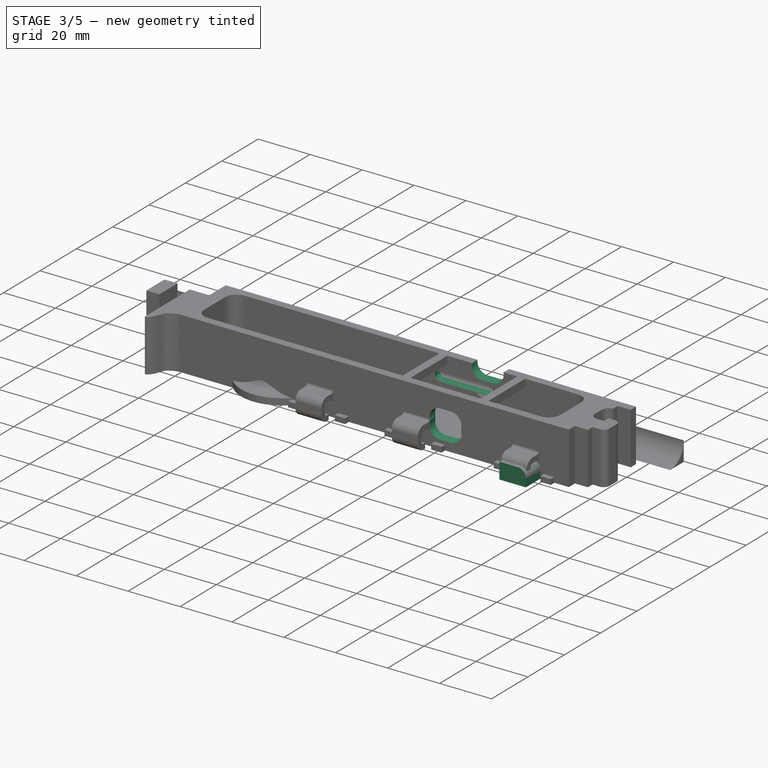
[diagram: stage 3 of 5 — iso view after this stage's code; geometry added in this stage tinted green]
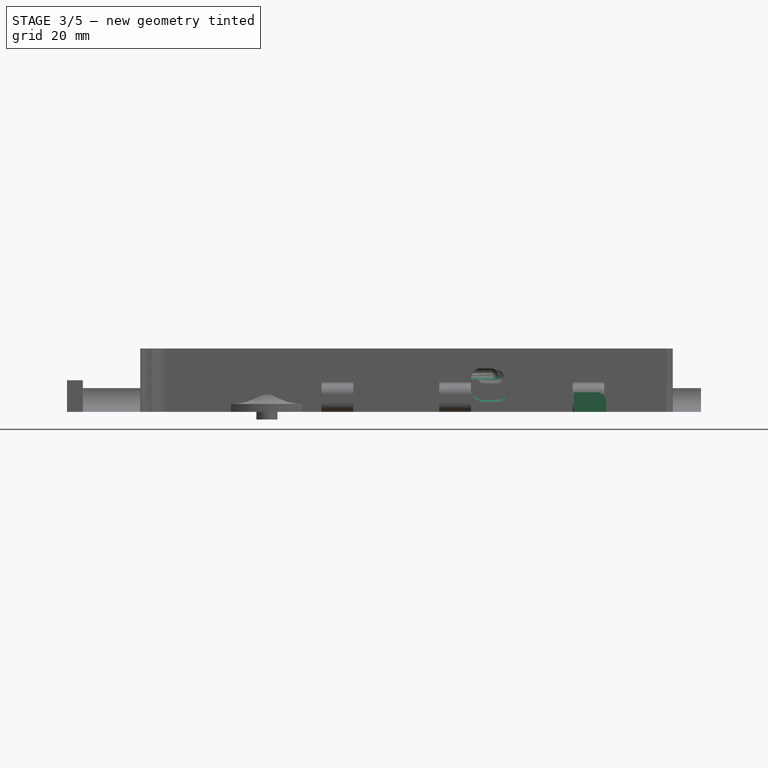
[diagram: stage 3 of 5 — front view after this stage's code; geometry added in this stage tinted green]
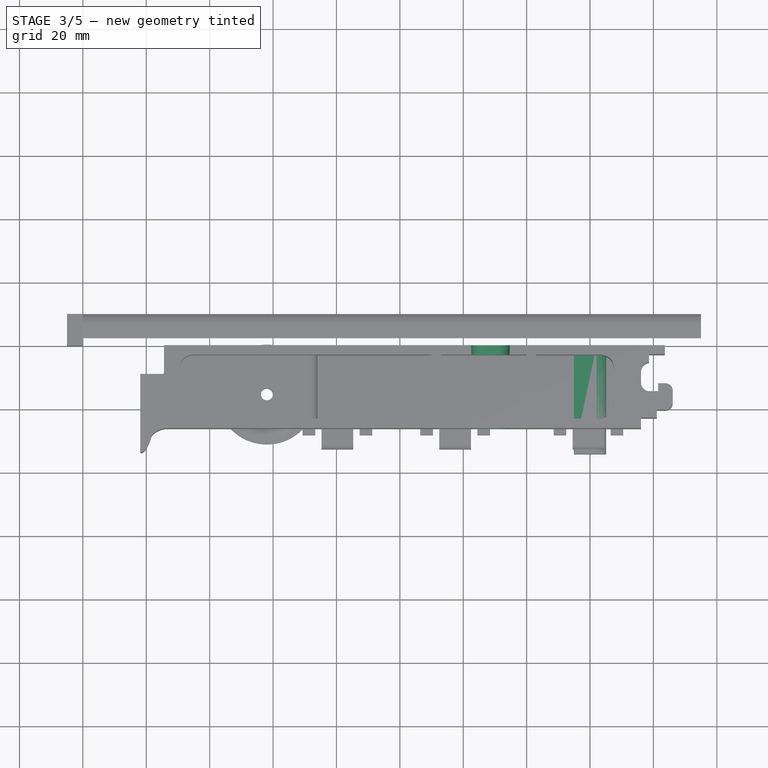
[diagram: stage 3 of 5 — top view after this stage's code; geometry added in this stage tinted green]
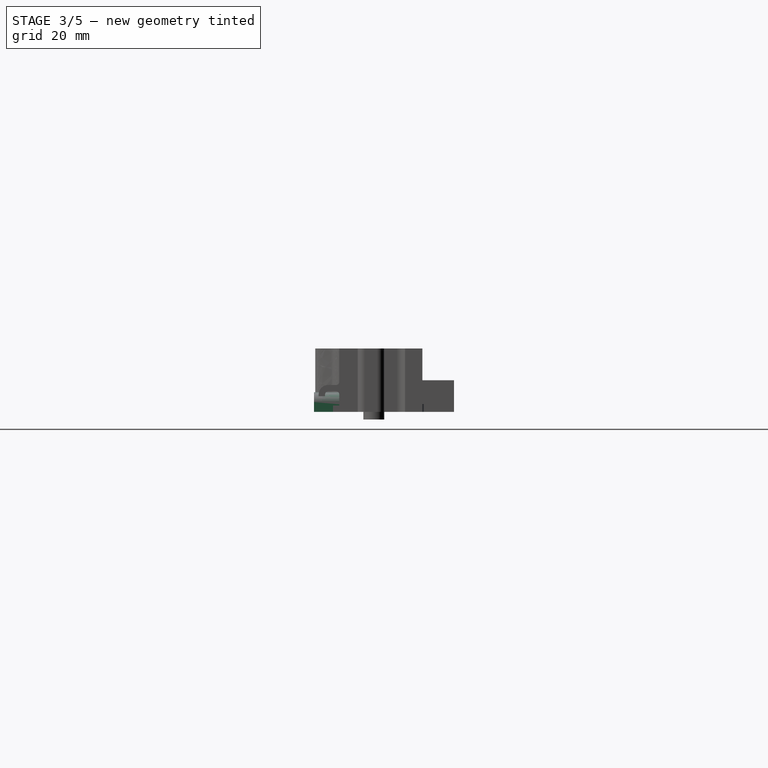
[diagram: stage 3 of 5 — right view after this stage's code; geometry added in this stage tinted green]
FEATURE [Part::Cylinder] Cylinder001
  Angle = 360
  AttacherType = Attacher::AttachEngine3D
  Height = 10
  Placement = pos=(-36.2,-2,12) rot=(0,1,0;1.5708rad)
  Radius = 2
FEATURE [App::MeasureDistance] Distance  label="Distance: 4.02 mm"
  Distance = 4.02
  P1 = (-33.21,5.8978,9.90268)
  P2 = (-29.19,5.8978,9.90268)
FEATURE [Part::Fillet] Fillet030
  Base = -> Cylinder001
  Edges = 1 edges r=1.8: [Edge3]
FEATURE [Part::Fillet] Fillet031
  Base = -> Fillet030
  Edges = 1 edges r=1.8: [Edge2]
FEATURE [Part::Cylinder] Cylinder003
  Angle = 360
  AttacherType = Attacher::AttachEngine3D
  Height = 10
  Placement = pos=(-36.2,-2,12) rot=(0,1,0;1.5708rad)
  Radius = 2
FEATURE [Part::Fillet] Fillet035
  Base = -> Cylinder003
  Edges = 1 edges r=1.8: [Edge3]
FEATURE [Part::Fillet] Fillet036
  Base = -> Fillet035
  Edges = 1 edges r=1.8: [Edge2]
  Placement = pos=(-12.8,0,0) rot=(0,0,1;0rad)
FEATURE [Part::Cylinder] Cylinder004
  Angle = 360
  AttacherType = Attacher::AttachEngine3D
  Height = 10
  Placement = pos=(-36.2,-2,12) rot=(0,1,0;1.5708rad)
  Radius = 2
FEATURE [Part::Fillet] Fillet038
  Base = -> Cylinder004
  Edges = 1 edges r=1.8: [Edge3]
FEATURE [Part::Fillet] Fillet037
  Base = -> Fillet038
  Edges = 1 edges r=1.8: [Edge2]
  Placement = pos=(-6.4,0,0) rot=(0,0,1;0rad)
FEATURE [Part::Fillet] Fillet049
  Base = -> Fillet048
  Edges = 1 edges r=3.9: [Edge17]
FEATURE [Part::Fillet] Fillet050
  Base = -> Fillet049
  Edges = 1 edges r=3.9: [Edge11]
  Placement = pos=(-58,-4,10.3) rot=(1,0,0;0.191986rad)
FEATURE [Part::MultiFuse] Fusion049
  Placement = pos=(-3,0,0) rot=(0,0,1;0rad)
  Shapes = -> [Fillet031,Fillet036,Fillet037]
FEATURE [Sketcher::SketchObject] Sketch050
  FullyConstrained = true
  sketch-geometry (4):
    g0: LineSegment StartX=-5.1 StartY=-34.18 StartZ=0 EndX=5.1 EndY=-34.18 EndZ=0
    g1: LineSegment StartX=-5.1 StartY=-3.93167e-07 StartZ=0 EndX=-5.1 EndY=-34.18 EndZ=0
    g2: LineSegment StartX=5.1 StartY=-34.18 StartZ=0 EndX=5.1 EndY=-3.93167e-07 EndZ=0
    g3: LineSegment StartX=-5.1 StartY=-3.93167e-07 StartZ=0 EndX=5.1 EndY=-3.93167e-07 EndZ=0
  constraints (10):
    c: Horizontal(g0)
    c: Block(g0)
    c: Coincident(g1,g0)
    c: Vertical(g1)
    c: Coincident(g2,g0)
    c: Vertical(g2)
    c: Coincident(g3,g1)
    c: Coincident(g3,g2)
    c: Horizontal(g3)
    c: Block(g3)
FEATURE [Part::Extrusion] Extrude048
  Base = -> Sketch050
  Dir = (0,0,1)
  DirMode = 2
  FaceMakerClass = Part::FaceMakerBullseye
  LengthFwd = 6.2
  LengthRev = 0
  Solid = true
  Symmetric = false
FEATURE [Part::Fillet] Fillet058
  Base = -> Extrude048
  Edges = 1 edges r=3.09: [Edge7]
FEATURE [Sketcher::SketchObject] Sketch052
  FullyConstrained = true
  sketch-geometry (4):
    g0: LineSegment StartX=20.5 StartY=-1.82002 StartZ=0 EndX=20.5 EndY=-36 EndZ=0
    g1: LineSegment StartX=32.7 StartY=-36 StartZ=0 EndX=32.7 EndY=-1.82002 EndZ=0
    g2: LineSegment StartX=20.5 StartY=-1.82002 StartZ=0 EndX=32.7 EndY=-1.82002 EndZ=0
    g3: LineSegment StartX=20.5 StartY=-36 StartZ=0 EndX=32.7 EndY=-36 EndZ=0
  constraints (12):
    c: Vertical(g0)
    c: Distance(g0) = 34.18
    c: Vertical(g1)
    c: Block(g0)
    c: Coincident(g2,g0)
    c: Horizontal(g2)
    c: Coincident(g2,g1)
    c: Block(g2)
    c: Block(g1)
    c: Coincident(g3,g0)
    c: Coincident(g3,g1)
    c: Horizontal(g3)
FEATURE [Part::Extrusion] Extrude050
  Base = -> Sketch052
  Dir = (0,0,1)
  DirMode = 2
  FaceMakerClass = Part::FaceMakerBullseye
  LengthFwd = 8
  LengthRev = 0
  Solid = true
  Symmetric = false
FEATURE [Part::Fillet] Fillet060
  Base = -> Extrude050
  Edges = 1 edges r=3.9: [Edge12]
FEATURE [Part::Fillet] Fillet061
  Base = -> Fillet060
  Edges = 1 edges r=3.9: [Edge8]
FEATURE [Part::Fillet] Fillet062
  Base = -> Fillet061
  Edges = 1 edges r=3.9: [Edge17]
FEATURE [Part::Fillet] Fillet063
  Base = -> Fillet062
  Edges = 1 edges r=3.9: [Edge11]
  Placement = pos=(-58,0,8.3) rot=(1,0,0;0.191986rad)
FEATURE [Sketcher::SketchObject] Sketch053
  FullyConstrained = true
  sketch-geometry (4):
    g0: LineSegment StartX=20.5 StartY=-1.82002 StartZ=0 EndX=20.5 EndY=-36 EndZ=0
    g1: LineSegment StartX=32.7 StartY=-36 StartZ=0 EndX=32.7 EndY=-1.82002 EndZ=0
    g2: LineSegment StartX=20.5 StartY=-1.82002 StartZ=0 EndX=32.7 EndY=-1.82002 EndZ=0
    g3: LineSegment StartX=20.5 StartY=-36 StartZ=0 EndX=32.7 EndY=-36 EndZ=0
  constraints (12):
    c: Vertical(g0)
    c: Distance(g0) = 34.18
    c: Vertical(g1)
    c: Block(g0)
    c: Coincident(g2,g0)
    c: Horizontal(g2)
    c: Coincident(g2,g1)
    c: Block(g2)
    c: Block(g1)
    c: Coincident(g3,g0)
    c: Coincident(g3,g1)
    c: Horizontal(g3)
FEATURE [Part::Extrusion] Extrude051
  Base = -> Sketch053
  Dir = (0,0,1)
  DirMode = 2
  FaceMakerClass = Part::FaceMakerBullseye
  LengthFwd = 8
  LengthRev = 0
  Solid = true
  Symmetric = false
FEATURE [Part::Fillet] Fillet064
  Base = -> Extrude051
  Edges = 1 edges r=3.9: [Edge12]
FEATURE [Part::Fillet] Fillet065
  Base = -> Fillet064
  Edges = 1 edges r=3.9: [Edge8]
FEATURE [Part::Fillet] Fillet066
  Base = -> Fillet065
  Edges = 1 edges r=3.9: [Edge17]
FEATURE [Part::Fillet] Fillet067
  Base = -> Fillet066
  Edges = 1 edges r=3.9: [Edge11]
  Placement = pos=(-58,24,20.3) rot=(1,0,0;0.191986rad)
FEATURE [Part::Cut] Cut
  Base = -> Fusion060
  Tool = -> Fillet050
FEATURE [Part::Cut] Cut028
  Base = -> Cut
  Tool = -> Fillet063
FEATURE [Part::Cut] Cut029
  Base = -> Cut028
  Tool = -> Fillet067
FEATURE [Part::Cut] Cut030
  Base = -> Cut029
  Tool = -> Fusion049
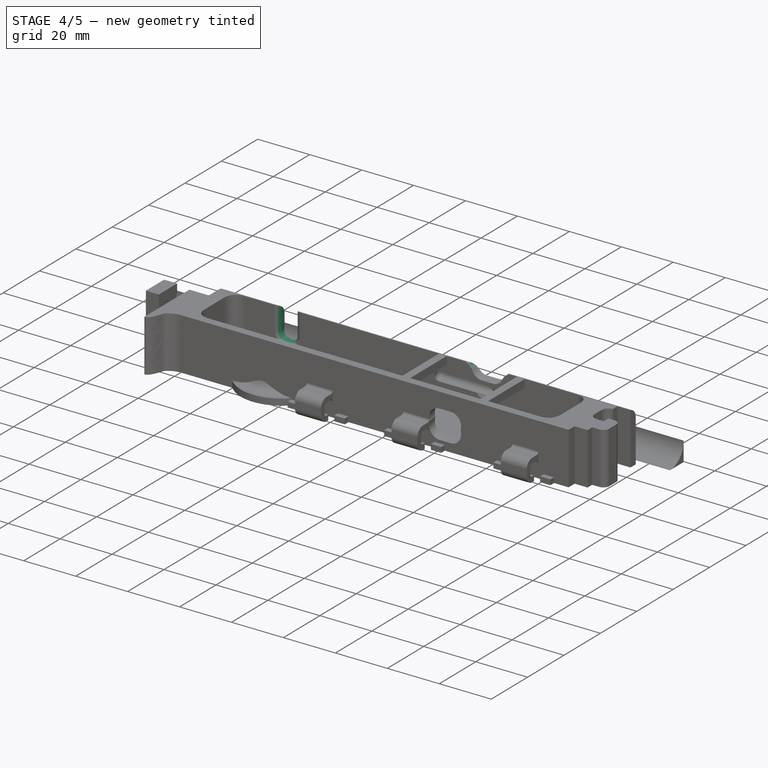
[diagram: stage 4 of 5 — iso view after this stage's code; geometry added in this stage tinted green]
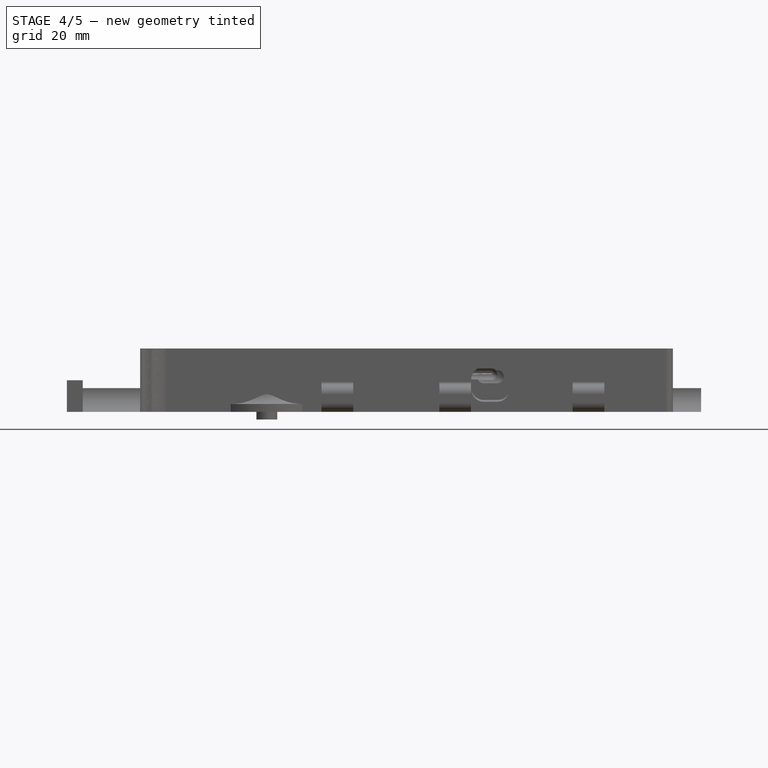
[diagram: stage 4 of 5 — front view after this stage's code; geometry added in this stage tinted green]
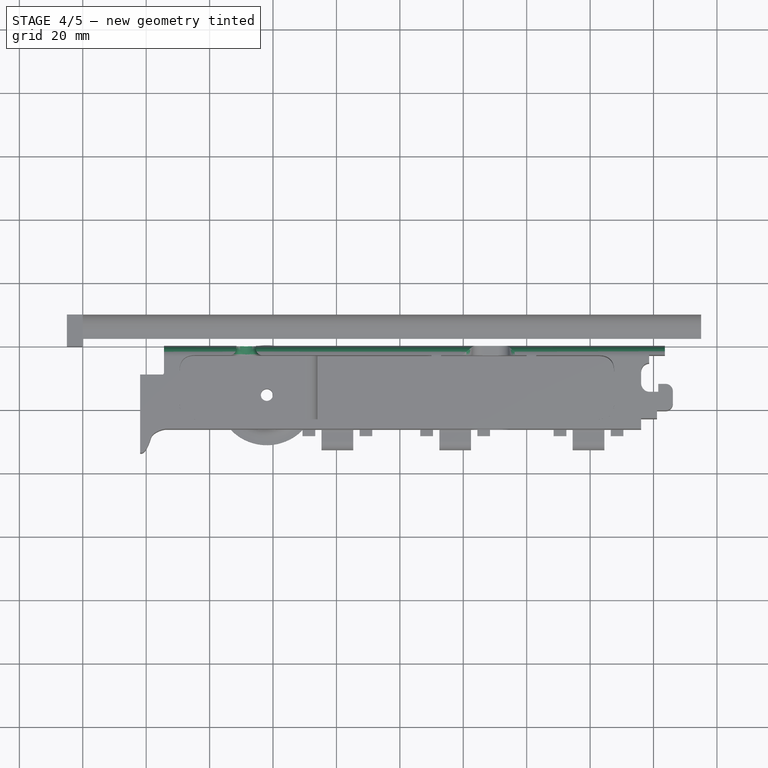
[diagram: stage 4 of 5 — top view after this stage's code; geometry added in this stage tinted green]
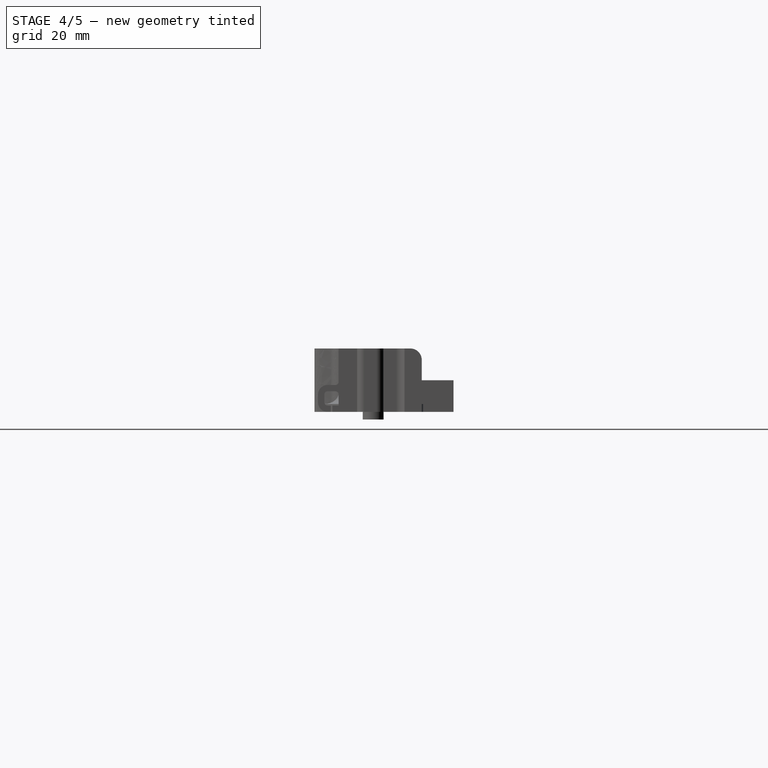
[diagram: stage 4 of 5 — right view after this stage's code; geometry added in this stage tinted green]
FEATURE [Part::Box] Box005  label="Cube005"
  AttacherType = Attacher::AttachEngine3D
  Height = 10
  Length = 198
  Placement = pos=(-30,0,0) rot=(0,0,1;0rad)
  Width = 10
FEATURE [Part::Box] Box004  label="Cube004"
  AttacherType = Attacher::AttachEngine3D
  Height = 10
  Length = 200
  Placement = pos=(-30,0,0) rot=(0,0,1;0rad)
  Width = 10
FEATURE [Part::Fillet] Fillet020
  Base = -> Box004
  Edges = 1 edges r=3.6: [Edge12]
FEATURE [Sketcher::SketchObject] Sketch047
  FullyConstrained = true
  sketch-geometry (4):
    g0: LineSegment StartX=20.5 StartY=-1.82002 StartZ=0 EndX=20.5 EndY=-36 EndZ=0
    g1: LineSegment StartX=32.7 StartY=-36 StartZ=0 EndX=32.7 EndY=-1.82002 EndZ=0
    g2: LineSegment StartX=20.5 StartY=-1.82002 StartZ=0 EndX=32.7 EndY=-1.82002 EndZ=0
    g3: LineSegment StartX=20.5 StartY=-36 StartZ=0 EndX=32.7 EndY=-36 EndZ=0
  constraints (12):
    c: Vertical(g0)
    c: Distance(g0) = 34.18
    c: Vertical(g1)
    c: Block(g0)
    c: Coincident(g2,g0)
    c: Horizontal(g2)
    c: Coincident(g2,g1)
    c: Block(g2)
    c: Block(g1)
    c: Coincident(g3,g0)
    c: Coincident(g3,g1)
    c: Horizontal(g3)
FEATURE [Part::Cut] Cut021
  Base = -> Box005
  Tool = -> Fillet020
FEATURE [Part::Box] Box073  label="Cube073"
  AttacherType = Attacher::AttachEngine3D
  Height = 10
  Length = 200
  Placement = pos=(-30,10,0) rot=(0,0,1;0rad)
  Width = 10
FEATURE [Part::Box] Box074  label="Cube074"
  AttacherType = Attacher::AttachEngine3D
  Height = 10
  Length = 200
  Placement = pos=(-30,0,10) rot=(0,0,1;0rad)
  Width = 10
FEATURE [Part::Box] Box075  label="Cube075"
  AttacherType = Attacher::AttachEngine3D
  Height = 10
  Length = 200
  Placement = pos=(-30,10,10) rot=(0,0,1;0rad)
  Width = 10
FEATURE [Part::MultiFuse] Fusion043  label="removeFromMainFusion043"
  Placement = pos=(-120,-10,10) rot=(0,0,1;0rad)
  Shapes = -> [Cut021,Box074,Box073,Box075]
FEATURE [Sketcher::SketchObject] Sketch048
  FullyConstrained = true
  sketch-geometry (4):
    g0: LineSegment StartX=-5.1 StartY=-34.18 StartZ=0 EndX=5.1 EndY=-34.18 EndZ=0
    g1: LineSegment StartX=-5.1 StartY=-3.93167e-07 StartZ=0 EndX=-5.1 EndY=-34.18 EndZ=0
    g2: LineSegment StartX=5.1 StartY=-34.18 StartZ=0 EndX=5.1 EndY=-3.93167e-07 EndZ=0
    g3: LineSegment StartX=-5.1 StartY=-3.93167e-07 StartZ=0 EndX=5.1 EndY=-3.93167e-07 EndZ=0
  constraints (10):
    c: Horizontal(g0)
    c: Block(g0)
    c: Coincident(g1,g0)
    c: Vertical(g1)
    c: Coincident(g2,g0)
    c: Vertical(g2)
    c: Coincident(g3,g1)
    c: Coincident(g3,g2)
    c: Horizontal(g3)
    c: Block(g3)
FEATURE [Part::Extrusion] Extrude044
  Base = -> Sketch048
  Dir = (0,0,1)
  DirMode = 2
  FaceMakerClass = Part::FaceMakerBullseye
  LengthFwd = 6.2
  LengthRev = 0
  Solid = true
  Symmetric = false
FEATURE [Part::Fillet] Fillet039
  Base = -> Extrude044
  Edges = 1 edges r=3.09: [Edge7]
FEATURE [Part::Fillet] Fillet040
  Base = -> Fillet039
  Edges = 1 edges r=3.09: [Edge8]
FEATURE [Part::Fillet] Fillet041
  Base = -> Fillet040
  Edges = 1 edges r=3.09: [Edge17]
FEATURE [Part::Fillet] Fillet042  label="removeFromMainToMakeUSBCableHole"
  Base = -> Fillet041
  Edges = 1 edges r=3.09: [Edge10]
  Placement = pos=(-111.4,30,10.9) rot=(0,1,0;1.5708rad)
FEATURE [Sketcher::SketchObject] Sketch049
  FullyConstrained = true
  sketch-geometry (4):
    g0: LineSegment StartX=-5.1 StartY=-34.18 StartZ=0 EndX=5.1 EndY=-34.18 EndZ=0
    g1: LineSegment StartX=-5.1 StartY=-3.93167e-07 StartZ=0 EndX=-5.1 EndY=-34.18 EndZ=0
    g2: LineSegment StartX=5.1 StartY=-34.18 StartZ=0 EndX=5.1 EndY=-3.93167e-07 EndZ=0
    g3: LineSegment StartX=-5.1 StartY=-3.93167e-07 StartZ=0 EndX=5.1 EndY=-3.93167e-07 EndZ=0
  constraints (10):
    c: Horizontal(g0)
    c: Block(g0)
    c: Coincident(g1,g0)
    c: Vertical(g1)
    c: Coincident(g2,g0)
    c: Vertical(g2)
    c: Coincident(g3,g1)
    c: Coincident(g3,g2)
    c: Horizontal(g3)
    c: Block(g3)
FEATURE [Part::Extrusion] Extrude047
  Base = -> Sketch049
  Dir = (0,0,1)
  DirMode = 2
  FaceMakerClass = Part::FaceMakerBullseye
  LengthFwd = 6.2
  LengthRev = 0
  Solid = true
  Symmetric = false
FEATURE [Part::Fillet] Fillet054
  Base = -> Extrude047
  Edges = 1 edges r=3.09: [Edge7]
FEATURE [Part::Fillet] Fillet051
  Base = -> Fillet054
  Edges = 1 edges r=3.09: [Edge8]
FEATURE [Part::Fillet] Fillet052
  Base = -> Fillet051
  Edges = 1 edges r=3.09: [Edge17]
FEATURE [Part::Fillet] Fillet053  label="removeFromMainToMakeUSBCableHole001"
  Base = -> Fillet052
  Edges = 1 edges r=3.09: [Edge10]
  Placement = pos=(-111.4,30,14.9) rot=(0,1,0;1.5708rad)
FEATURE [Part::Fillet] Fillet056
  Base = -> Fillet058
  Edges = 1 edges r=3.09: [Edge8]
FEATURE [Part::Fillet] Fillet055
  Base = -> Fillet056
  Edges = 1 edges r=3.09: [Edge17]
FEATURE [Part::Fillet] Fillet057  label="removeFromMainToMakeUSBCableHole002"
  Base = -> Fillet055
  Edges = 1 edges r=3.09: [Edge10]
  Placement = pos=(-111.4,30,18.4) rot=(0,1,0;1.5708rad)
FEATURE [Part::MultiFuse] Fusion050  label="removeFusion050"
  Placement = pos=(-0.2,0,2.24) rot=(0,0,1;0rad)
  Shapes = -> [Fillet057,Fillet053,Fillet042]
FEATURE [Part::Cut] Cut031
  Base = -> Cut030
  Tool = -> Fusion050
FEATURE [Part::Fillet] Fillet068
  Base = -> Cut031
  Edges = 1 edges r=2: [Edge422]
FEATURE [Part::Fillet] Fillet069
  Base = -> Fillet068
  Edges = 1 edges r=4: [Edge113]
FEATURE [Part::Fillet] Fillet070
  Base = -> Fillet069
  Edges = 1 edges r=4: [Edge282]
FEATURE [Part::Cut] Cut032
  Base = -> Fillet070
  Tool = -> Fusion043
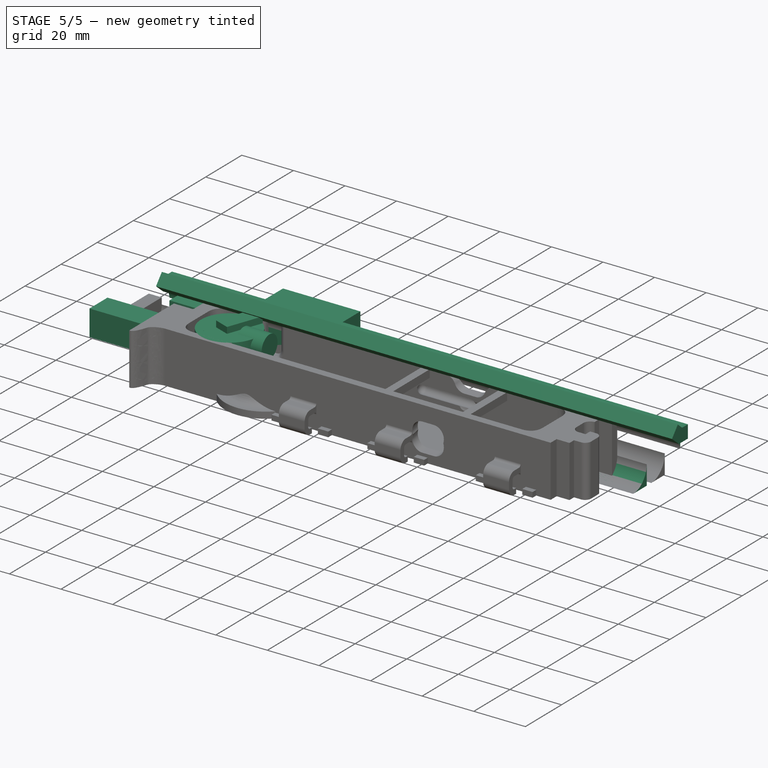
[diagram: stage 5 of 5 — iso view after this stage's code; geometry added in this stage tinted green]
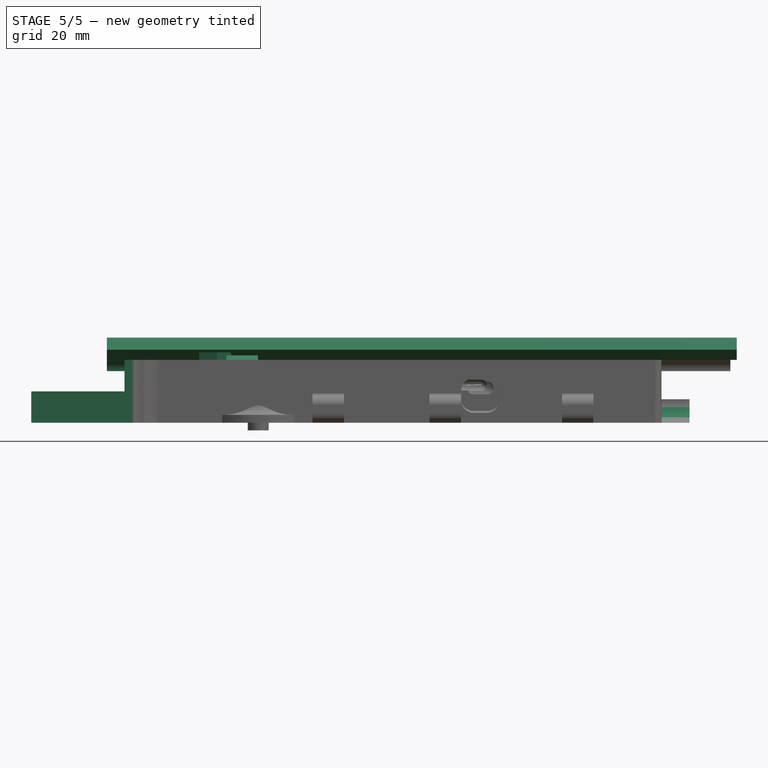
[diagram: stage 5 of 5 — front view after this stage's code; geometry added in this stage tinted green]
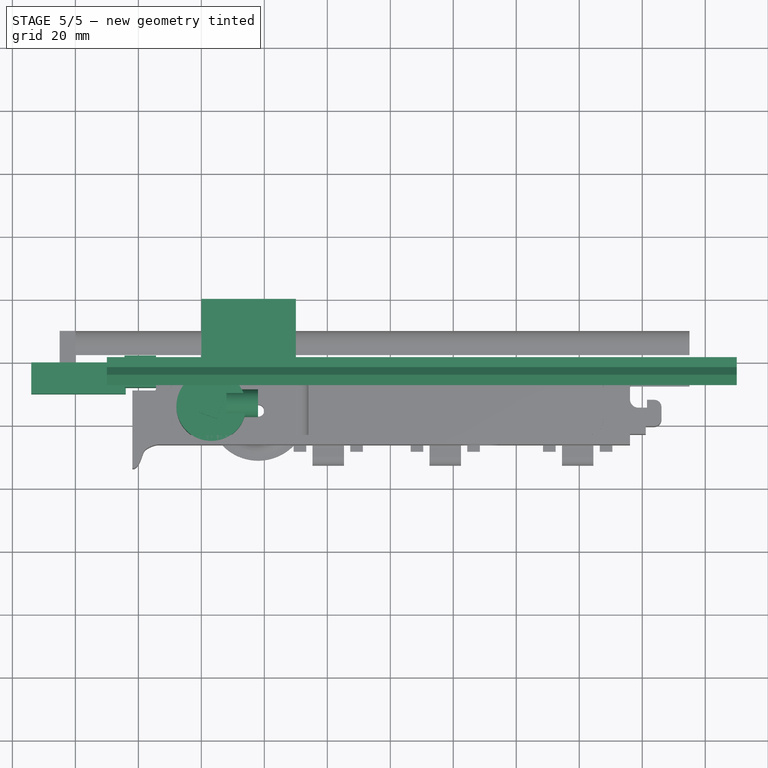
[diagram: stage 5 of 5 — top view after this stage's code; geometry added in this stage tinted green]
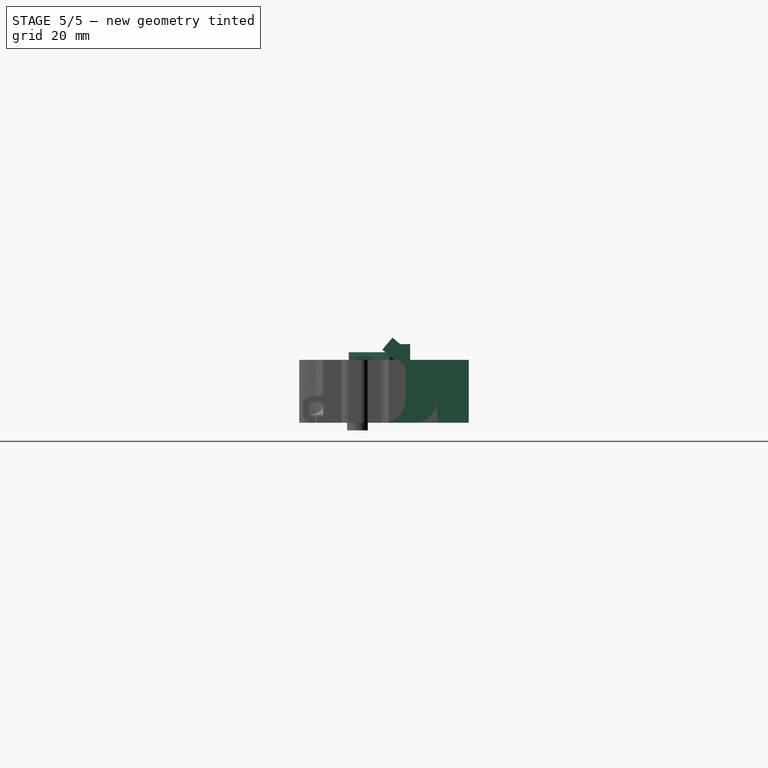
[diagram: stage 5 of 5 — right view after this stage's code; geometry added in this stage tinted green]
FEATURE [Part::Box] Box  label="Cube"
  AttacherType = Attacher::AttachEngine3D
  Height = 10
  Length = 10
  Placement = pos=(-107,0,0) rot=(0,0,1;0rad)
  Width = 10
FEATURE [Part::Box] Box063  label="Cube063"
  AttacherType = Attacher::AttachEngine3D
  Height = 10
  Length = 198
  Placement = pos=(-30,0,0) rot=(0,0,1;0rad)
  Width = 10
FEATURE [Part::Box] Box064  label="Cube064"
  AttacherType = Attacher::AttachEngine3D
  Height = 5
  Length = 200
  Placement = pos=(-30,6.4,10) rot=(1,0,0;0rad)
  Width = 5
FEATURE [Part::Box] Box065  label="Cube065"
  AttacherType = Attacher::AttachEngine3D
  Height = 5
  Length = 200
  Placement = pos=(-30,6.4,10) rot=(1,0,0;0.872665rad)
  Width = 5
FEATURE [Part::Box] Box066  label="Cube066"
  AttacherType = Attacher::AttachEngine3D
  Height = 10
  Length = 200
  Placement = pos=(-30,0,0) rot=(0,0,1;0rad)
  Width = 10
FEATURE [Part::Fillet] Fillet023
  Base = -> Box066
  Edges = 1 edges r=3.6: [Edge12]
FEATURE [Part::Cut] Cut018
  Base = -> Box063
  Tool = -> Fillet023
FEATURE [Part::MultiFuse] Fusion035  label="removeFromMainFusion015"
  Placement = pos=(-120,-10,10) rot=(0,0,1;0rad)
  Shapes = -> [Box065,Box064,Cut018]
FEATURE [Part::Box] Box067  label="Cube067"
  AttacherType = Attacher::AttachEngine3D
  Height = 10
  Length = 190
  Placement = pos=(-30,0,0) rot=(0,0,1;0rad)
  Width = 10
FEATURE [Part::Fillet] Fillet024
  Base = -> Box067
  Edges = 1 edges r=7.5: [Edge11]
FEATURE [Part::Box] Box068  label="Cube068"
  AttacherType = Attacher::AttachEngine3D
  Height = 10
  Length = 190
  Placement = pos=(-35,0,0) rot=(0,0,1;0rad)
  Width = 10
FEATURE [Part::Cut] Cut019  label="filletMain002"
  Base = -> Box068
  Placement = pos=(-120,-10,0) rot=(0,0,1;0rad)
  Tool = -> Fillet024
FEATURE [Part::MultiFuse] Fusion036  label="removeFromMain002"
  Shapes = -> [Fusion035,Cut019]
FEATURE [Part::Box] Box069  label="Cube069"
  AttacherType = Attacher::AttachEngine3D
  Height = 20
  Length = 10
  Placement = pos=(-144.4,-8,0) rot=(0,0,1;0rad)
  Width = 10
FEATURE [Part::Box] Box070  label="Cube070"
  AttacherType = Attacher::AttachEngine3D
  Height = 20
  Length = 30
  Placement = pos=(-120,0,0) rot=(0,0,1;0rad)
  Width = 20
FEATURE [Part::MultiFuse] Fusion037  label="removeFromIntegrityIncreaserFusion037"
  Shapes = -> [Box069,Box070,Fusion036]
FEATURE [Part::Box] Box076  label="Cube076"
  AttacherType = Attacher::AttachEngine3D
  Height = 10
  Length = 200
  Placement = pos=(-160,0,0) rot=(0,0,1;0rad)
  Width = 10
FEATURE [Part::Box] Box077  label="Cube077"
  AttacherType = Attacher::AttachEngine3D
  Height = 10
  Length = 170
  Placement = pos=(-130,0,0) rot=(0,0,1;0rad)
  Width = 10
FEATURE [Part::Fillet] Fillet028
  Base = -> Box077
  Edges = 1 edges r=7.5: [Edge11]
FEATURE [Part::Cut] Cut024
  Base = -> Box076
  Placement = pos=(-14,-10,0) rot=(0,0,1;0rad)
  Tool = -> Fillet028
FEATURE [Part::Cylinder] Cylinder
  Angle = 360
  AttacherType = Attacher::AttachEngine3D
  Height = 17.6
  Placement = pos=(-116.86,-14.05,2.4) rot=(0,0,1;0rad)
  Radius = 8.4
FEATURE [Part::Box] Box080  label="Cube080"
  AttacherType = Attacher::AttachEngine3D
  Height = 20
  Length = 6
  Placement = pos=(-120.65,-16.05,2.4) rot=(0,0,-1;0.349066rad)
  Width = 13.85
FEATURE [Part::Cylinder] Cylinder005
  Angle = 360
  AttacherType = Attacher::AttachEngine3D
  Height = 20
  Placement = pos=(-116.86,-14.05,30) rot=(0,0,1;0rad)
  Radius = 11.06
FEATURE [Part::Box] Box081  label="Cube081"
  AttacherType = Attacher::AttachEngine3D
  Height = 20
  Length = 10
  Placement = pos=(-115.9,-3.3,30) rot=(0,0,-1;0.314159rad)
  Width = 10
FEATURE [App::MeasureDistance] Distance001  label="Distance: 2.40 mm"
  Distance = 2.4
  P1 = (-129.5,-19.3,2.4)
  P2 = (-129.5,-19.3,0)
FEATURE [Part::MultiFuse] Fusion047
  Shapes = -> [Box080,Cylinder]
FEATURE [Part::Cylinder] Cylinder006
  Angle = 360
  AttacherType = Attacher::AttachEngine3D
  Height = 10
  Placement = pos=(-112,-13.1,17) rot=(0,1,0;1.5708rad)
  Radius = 4.4
FEATURE [Part::MultiFuse] Fusion048  label="removeFromMainToCreateHoleForUSBCablePillar"
  Shapes = -> [Fusion047,Cylinder006]
FEATURE [Part::Cut] Cut027
  Base = -> Cylinder005
  Placement = pos=(0,0,-30) rot=(0,0,1;0rad)
  Tool = -> Box081
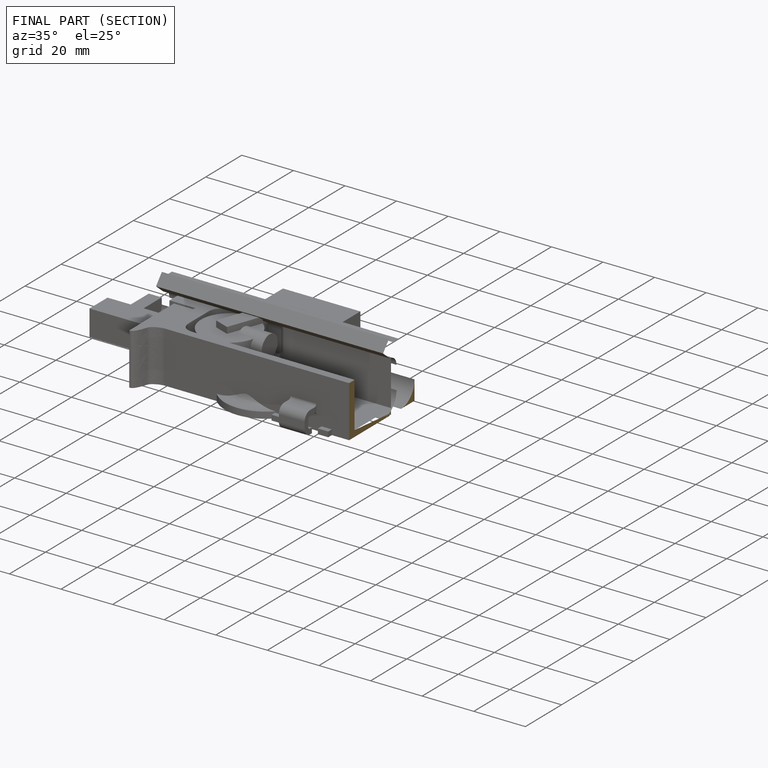
[diagram: finished part — half-section view (interior)]
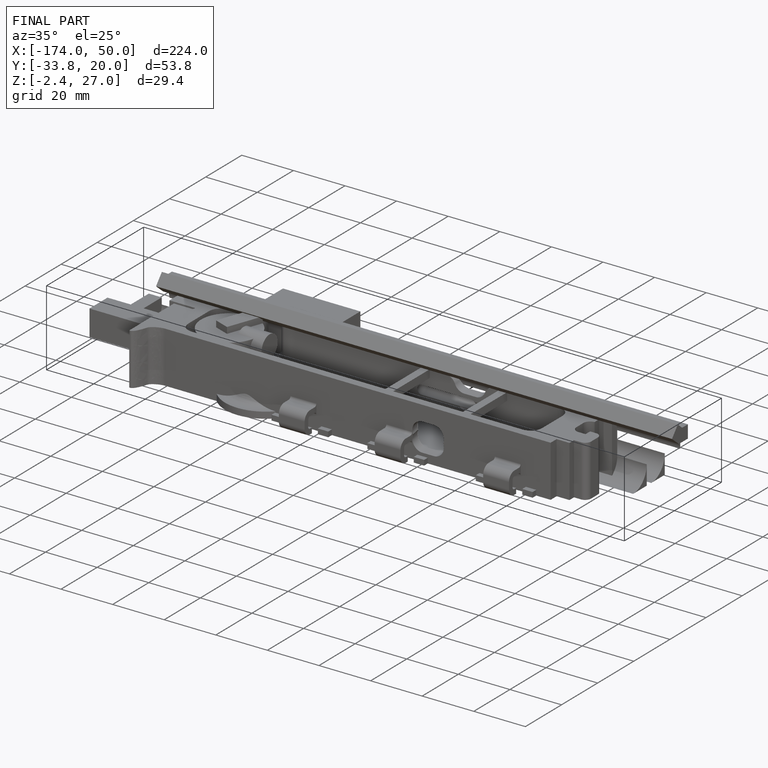
[diagram: finished part — iso view with bounding-box wireframe]
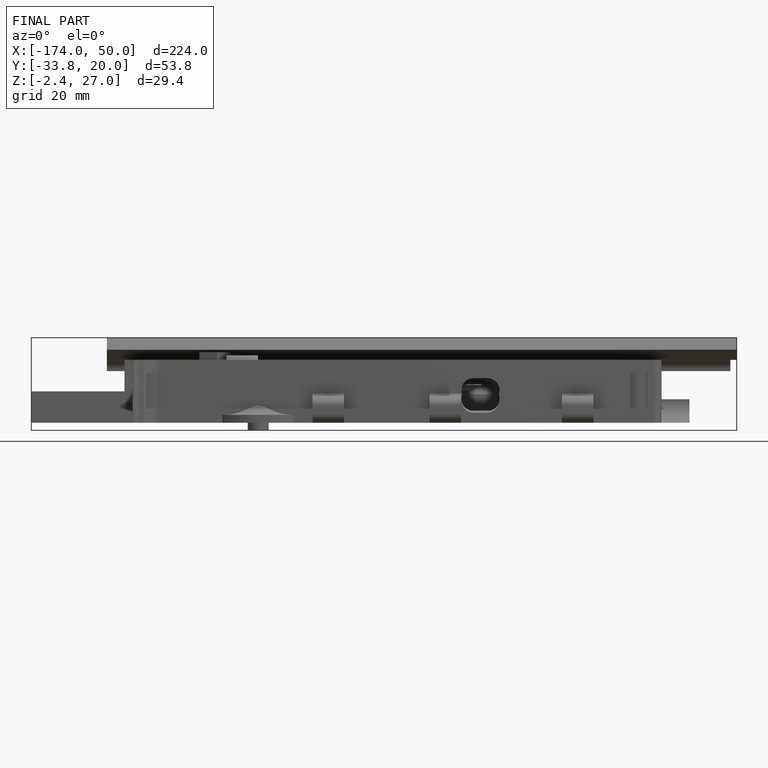
[diagram: finished part — front view with bounding-box wireframe]
